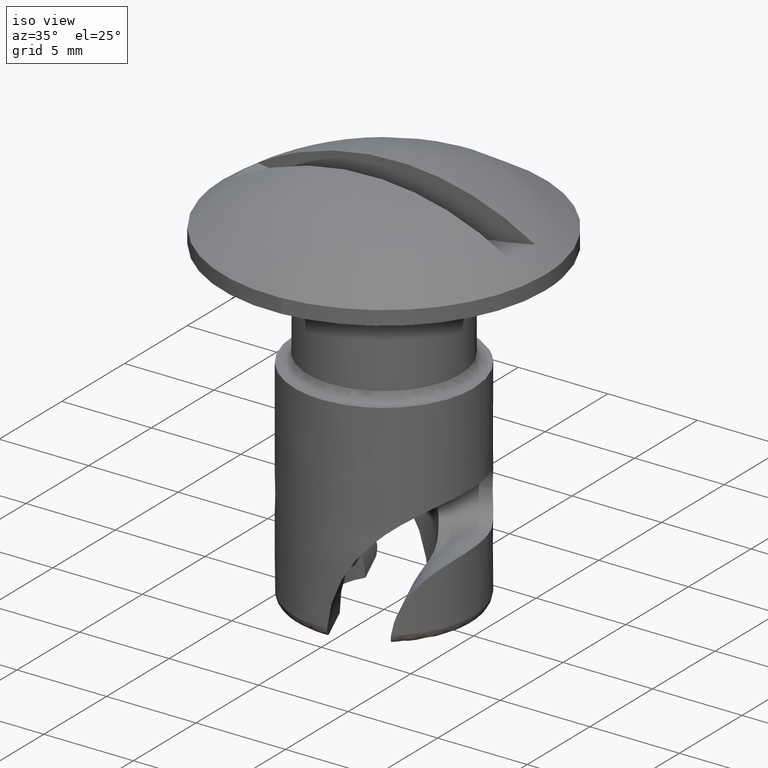
[diagram: clean part render]
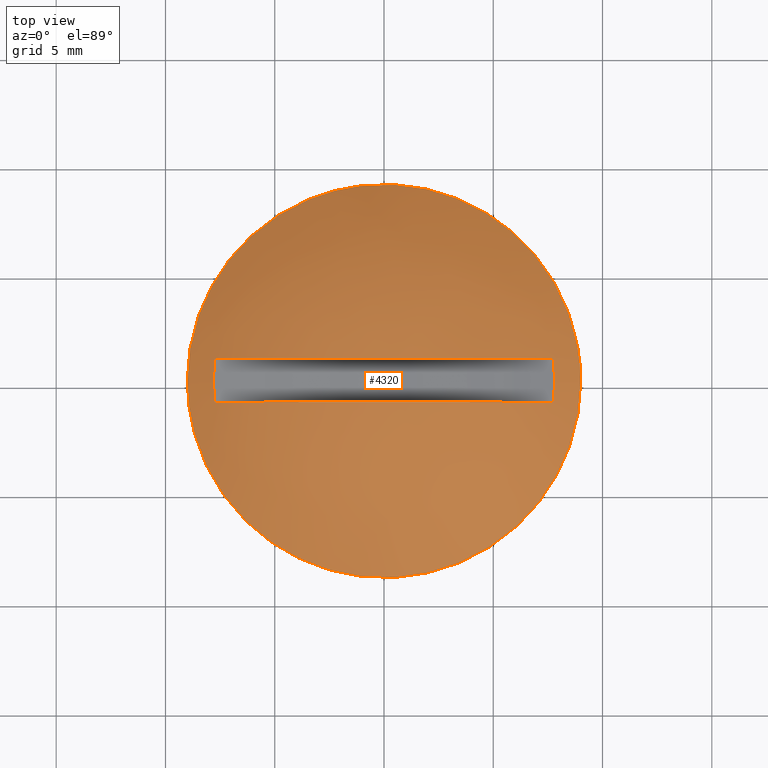
[diagram: tour spotlight — one face highlighted and labeled with its STEP entity id]
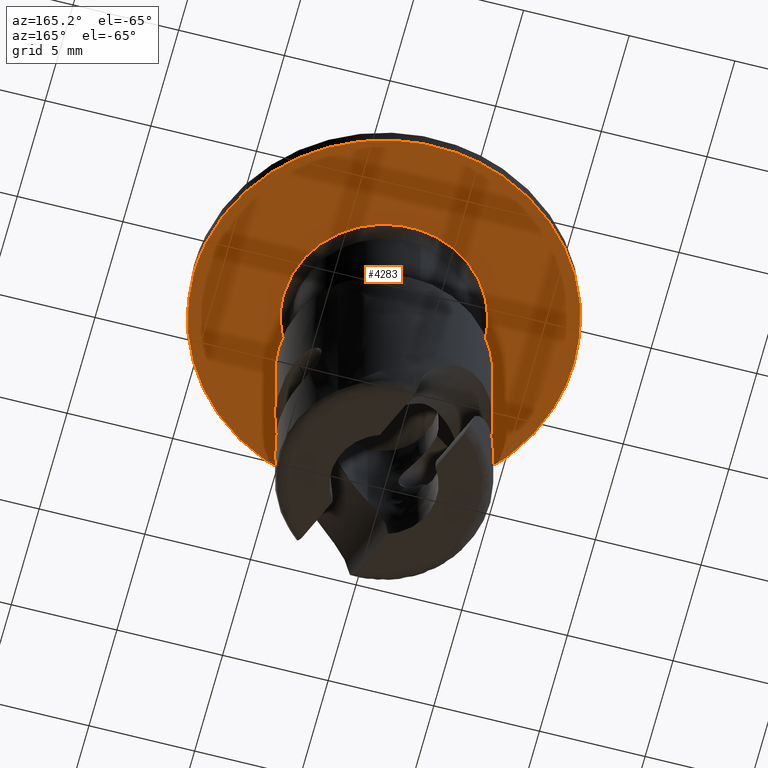
[diagram: tour spotlight — one face highlighted and labeled with its STEP entity id]
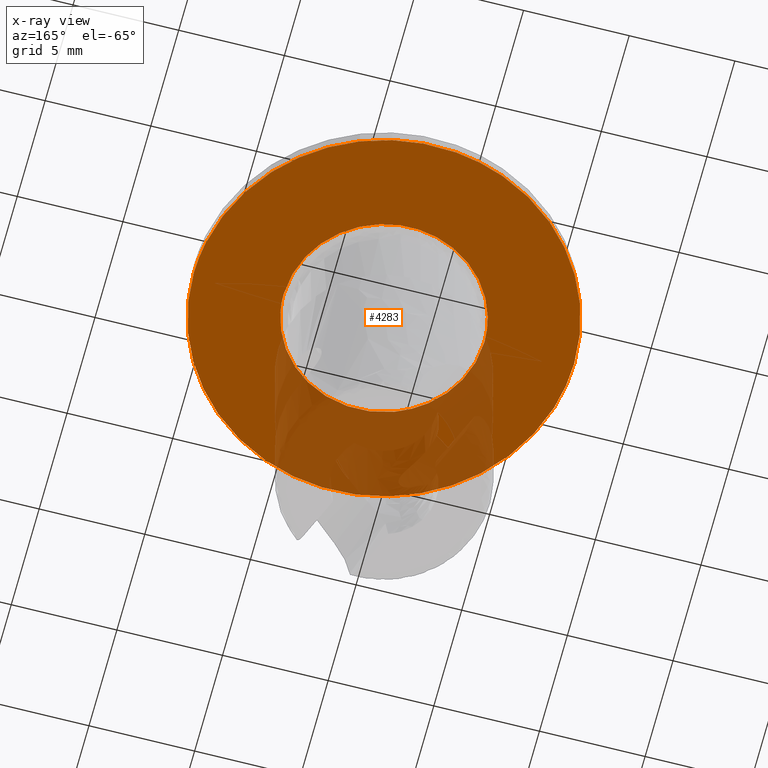
[diagram: x-ray of the same camera — body ghosted, this tour face saturated]
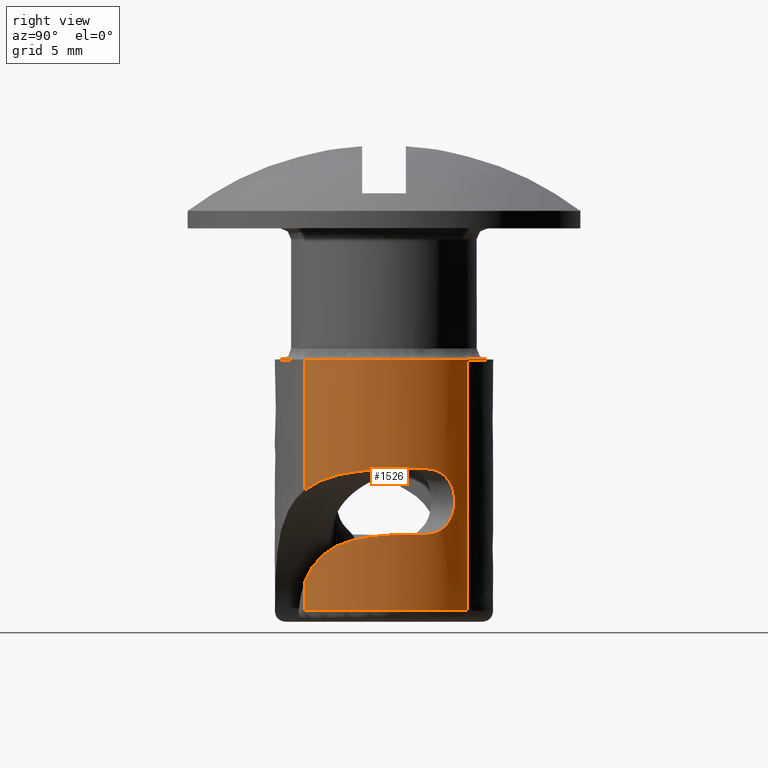
[diagram: tour spotlight — one face highlighted and labeled with its STEP entity id]
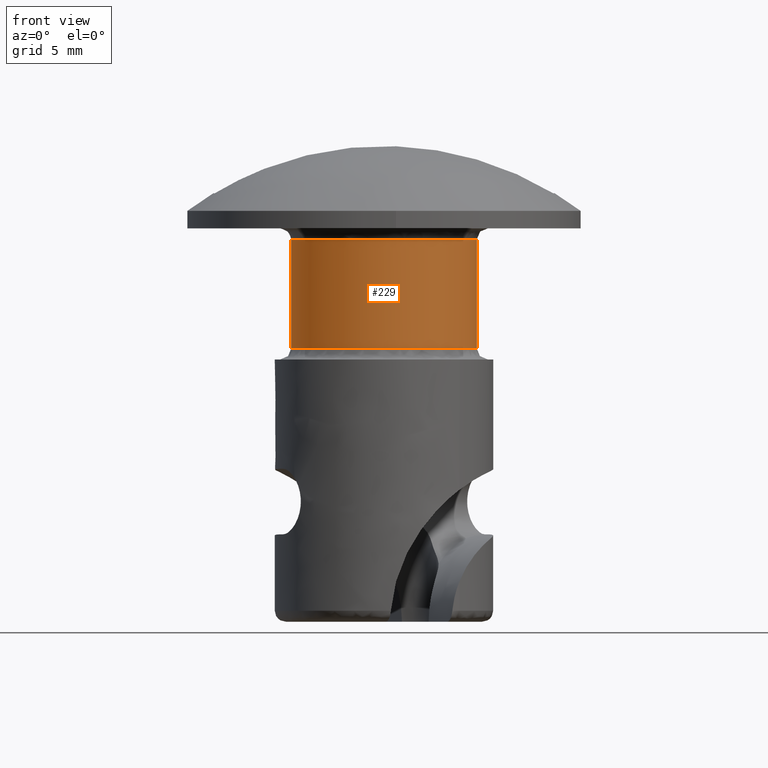
[diagram: tour spotlight — one face highlighted and labeled with its STEP entity id]
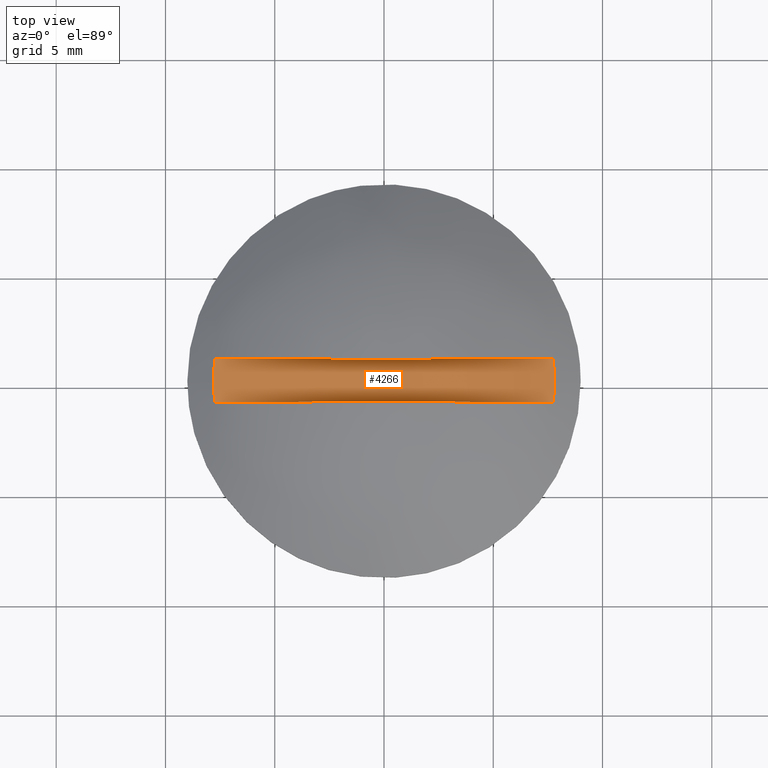
[diagram: tour spotlight — one face highlighted and labeled with its STEP entity id]
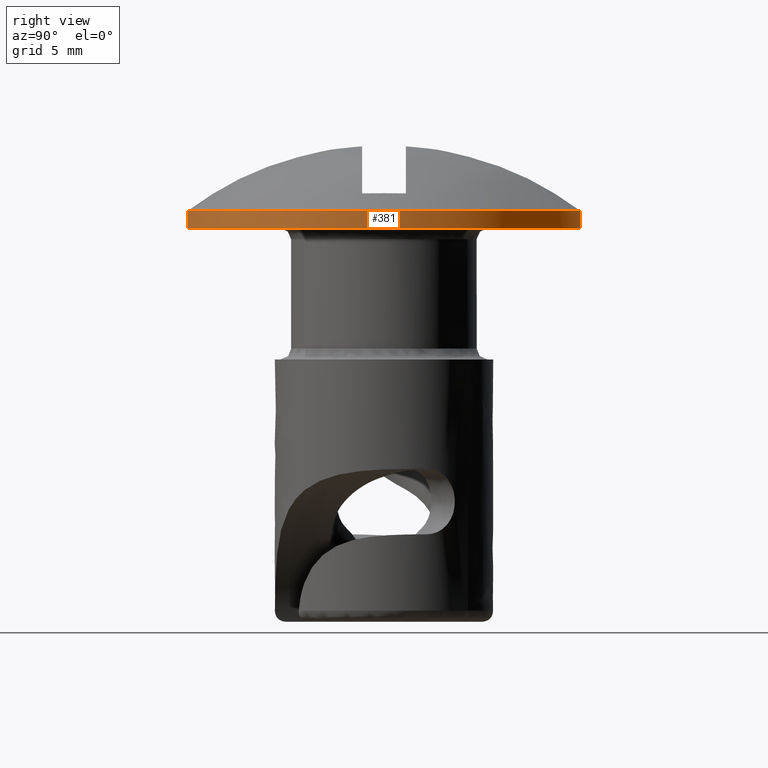
[diagram: tour spotlight — one face highlighted and labeled with its STEP entity id]
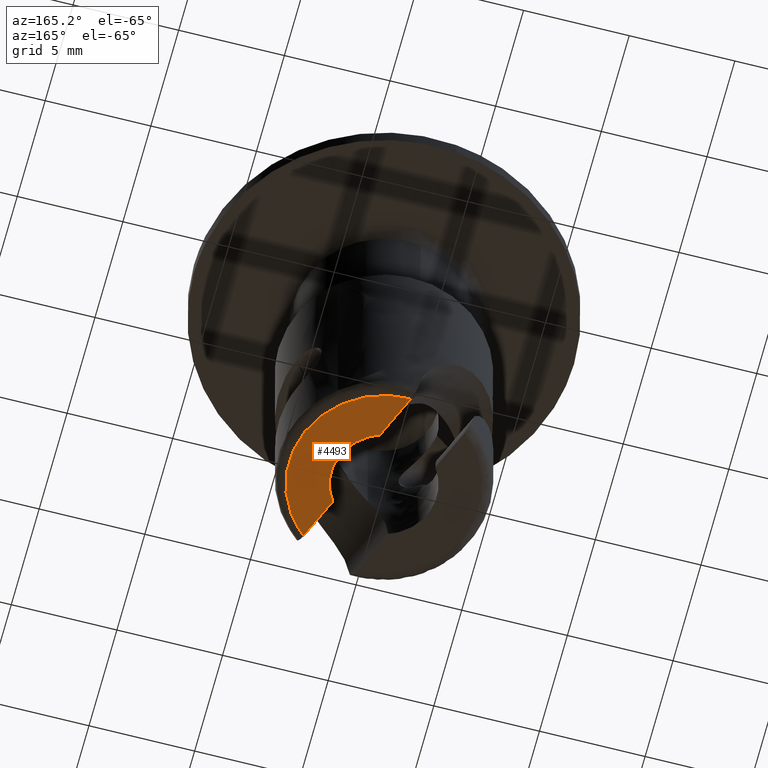
[diagram: tour spotlight — one face highlighted and labeled with its STEP entity id]
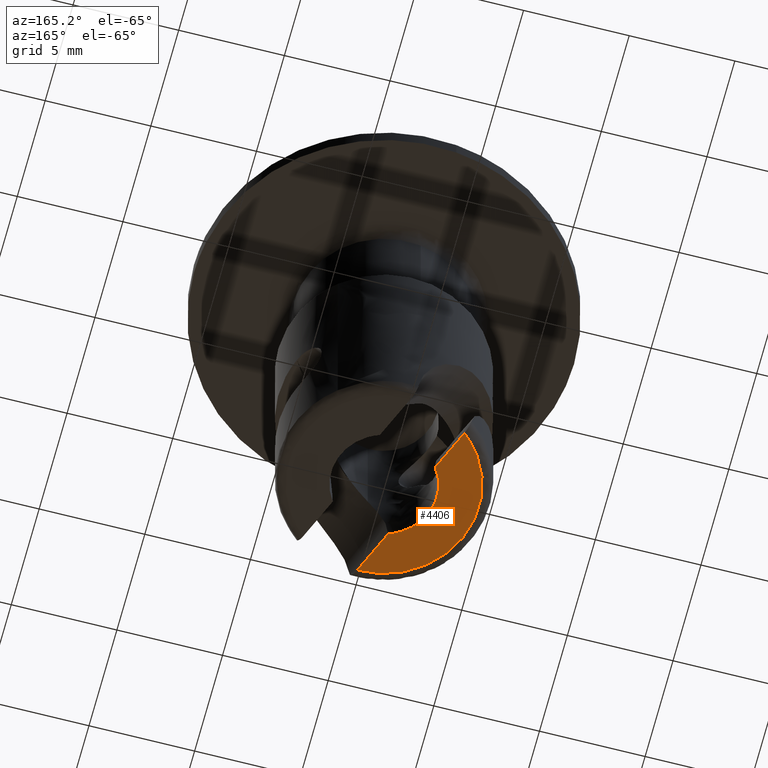
[diagram: tour spotlight — one face highlighted and labeled with its STEP entity id]
A machine part: a face-by-face anatomy tour. The part has 36 B-rep faces; the first image is the clean iso view, then the 8 largest visible faces are spotlighted one at a time (largest first), each with its STEP entity span.

Face 1 — top view, entity #4320. In plain terms, the highlighted face is a freeform B-spline surface patch.
Definition (entity closure, byte-faithful):
#320=CARTESIAN_POINT('',(-1.062306320053986,8.937085950261979,0.800003000000103));
#321=VERTEX_POINT('',#320);
#327=CARTESIAN_POINT('',(9.0,0.0,0.800003000000103));
#328=VERTEX_POINT('',#327);
#329=CARTESIAN_POINT('',(-1.062306320053986,8.937085950261979,0.800003000000103));
#330=CARTESIAN_POINT('',(-0.533016171467157,8.999999999999998,0.800003000000103));
#331=CARTESIAN_POINT('',(0.0,9.0,0.800003000000103));
#332=CARTESIAN_POINT('',(9.0,9.0,0.800003000000103));
#333=CARTESIAN_POINT('',(9.0,0.0,0.800003000000103));
#341=(BOUNDED_CURVE()B_SPLINE_CURVE(2,(#329,#330,#331,#332,#333),.UNSPECIFIED.,.F.,.U.)B_SPLINE_CURVE_WITH_KNOTS((3,2,3),(0.229562507400251,0.250000000000000,0.500000000000000),.UNSPECIFIED.)CURVE()GEOMETRIC_REPRESENTATION_ITEM()RATIONAL_B_SPLINE_CURVE((0.956026820603112,0.976055988031933,1.0,0.707106781186547,1.0))REPRESENTATION_ITEM(''));
#342=EDGE_CURVE('',#321,#328,#341,.T.);
#344=CARTESIAN_POINT('',(0.549429465328879,-8.983213637812114,0.800003000000103));
#345=VERTEX_POINT('',#344);
#346=CARTESIAN_POINT('',(9.0,0.0,0.800003000000103));
#347=CARTESIAN_POINT('',(9.0,-8.466361580435052,0.800003000000103));
#348=CARTESIAN_POINT('',(0.549429465328879,-8.983213637812114,0.800003000000103));
#356=(BOUNDED_CURVE()B_SPLINE_CURVE(2,(#346,#347,#348),.UNSPECIFIED.,.F.,.U.)B_SPLINE_CURVE_WITH_KNOTS((3,3),(0.500000000000000,0.739333104196138),.UNSPECIFIED.)CURVE()GEOMETRIC_REPRESENTATION_ITEM()RATIONAL_B_SPLINE_CURVE((1.0,0.719603826973511,0.976072345908198))REPRESENTATION_ITEM(''));
#357=EDGE_CURVE('',#328,#345,#356,.T.);
#431=CARTESIAN_POINT('',(-9.0,0.0,0.800003000000103));
#432=VERTEX_POINT('',#431);
#433=CARTESIAN_POINT('',(0.549429465328879,-8.983213637812114,0.800003000000103));
#434=CARTESIAN_POINT('',(0.274971164084015,-9.000000000000002,0.800003000000103));
#435=CARTESIAN_POINT('',(0.0,-9.0,0.800003000000103));
#436=CARTESIAN_POINT('',(-9.0,-9.0,0.800003000000103));
#437=CARTESIAN_POINT('',(-9.0,0.0,0.800003000000103));
#445=(BOUNDED_CURVE()B_SPLINE_CURVE(2,(#433,#434,#435,#436,#437),.UNSPECIFIED.,.F.,.U.)B_SPLINE_CURVE_WITH_KNOTS((3,2,3),(0.739333104196138,0.750000000000000,1.0),.UNSPECIFIED.)CURVE()GEOMETRIC_REPRESENTATION_ITEM()RATIONAL_B_SPLINE_CURVE((0.976072345908198,0.987502954213037,1.0,0.707106781186547,1.0))REPRESENTATION_ITEM(''));
#446=EDGE_CURVE('',#345,#432,#445,.T.);
#448=CARTESIAN_POINT('',(-9.0,0.0,0.800003000000103));
#449=CARTESIAN_POINT('',(-9.0,7.993572347529939,0.800003000000103));
#450=CARTESIAN_POINT('',(-1.062306320053986,8.937085950261979,0.800003000000103));
#458=(BOUNDED_CURVE()B_SPLINE_CURVE(2,(#448,#449,#450),.UNSPECIFIED.,.F.,.U.)B_SPLINE_CURVE_WITH_KNOTS((3,3),(0.0,0.229562507400251),.UNSPECIFIED.)CURVE()GEOMETRIC_REPRESENTATION_ITEM()RATIONAL_B_SPLINE_CURVE((1.0,0.731050793154614,0.956026820603112))REPRESENTATION_ITEM(''));
#459=EDGE_CURVE('',#432,#321,#458,.T.);
#4161=CARTESIAN_POINT('',(-7.756297594288951,-0.999999999999909,1.600005047999795));
#4162=VERTEX_POINT('',#4161);
#4163=CARTESIAN_POINT('',(7.756297594288951,-0.999999999999909,1.600005047999795));
#4164=VERTEX_POINT('',#4163);
#4178=CARTESIAN_POINT('',(7.756297594288951,-0.999999999999915,1.600005047999783));
#4179=CARTESIAN_POINT('',(3.469447E-015,-0.999999999999915,6.300019137504304));
#4180=CARTESIAN_POINT('',(-7.756297594288944,-0.999999999999915,1.600005047999785));
#4188=(BOUNDED_CURVE()B_SPLINE_CURVE(2,(#4178,#4179,#4180),.UNSPECIFIED.,.F.,.U.)CURVE()GEOMETRIC_REPRESENTATION_ITEM()QUASI_UNIFORM_CURVE()RATIONAL_B_SPLINE_CURVE((1.0,0.855235576435009,1.0))REPRESENTATION_ITEM(''));
#4189=EDGE_CURVE('',#4164,#4162,#4188,.T.);
#4199=CARTESIAN_POINT('',(7.756297594288951,1.0,1.600005047999795));
#4200=VERTEX_POINT('',#4199);
#4201=CARTESIAN_POINT('',(-7.756297594288951,1.0,1.600005047999795));
#4202=VERTEX_POINT('',#4201);
#4203=CARTESIAN_POINT('',(7.756297594288951,1.0,1.600005047999783));
#4204=CARTESIAN_POINT('',(3.469447E-015,1.0,6.300019137504304));
#4205=CARTESIAN_POINT('',(-7.756297594288944,1.0,1.600005047999785));
#4213=(BOUNDED_CURVE()B_SPLINE_CURVE(2,(#4203,#4204,#4205),.UNSPECIFIED.,.F.,.U.)CURVE()GEOMETRIC_REPRESENTATION_ITEM()QUASI_UNIFORM_CURVE()RATIONAL_B_SPLINE_CURVE((1.0,0.855235576435009,1.0))REPRESENTATION_ITEM(''));
#4214=EDGE_CURVE('',#4200,#4202,#4213,.T.);
#4247=CARTESIAN_POINT('',(-7.756297594288967,-0.999999999999909,1.600005047999784));
#4248=CARTESIAN_POINT('',(-7.788271615787219,-0.666666666666591,1.606671715733117));
#4249=CARTESIAN_POINT('',(-7.819938076451132,4.575333E-014,1.613338383466444));
#4250=CARTESIAN_POINT('',(-7.788271615787212,0.666666666666682,1.606671715733117));
#4251=CARTESIAN_POINT('',(-7.756297594288955,1.0,1.600005047999784));
#4252=B_SPLINE_CURVE_WITH_KNOTS('',3,(#4247,#4248,#4249,#4250,#4251),.UNSPECIFIED.,.F.,.U.,(4,1,4),(0.0,0.500000000000000,1.0),.UNSPECIFIED.);
#4253=EDGE_CURVE('',#4162,#4202,#4252,.T.);
#4256=CARTESIAN_POINT('',(7.756297594288955,1.0,1.600005047999784));
#4257=CARTESIAN_POINT('',(7.788271615787210,0.666666666666682,1.606671715733117));
#4258=CARTESIAN_POINT('',(7.819938076451114,4.586175E-014,1.613338383466455));
#4259=CARTESIAN_POINT('',(7.788271615787211,-0.666666666666591,1.606671715733122));
#4260=CARTESIAN_POINT('',(7.756297594288957,-0.999999999999909,1.600005047999789));
#4261=B_SPLINE_CURVE_WITH_KNOTS('',3,(#4256,#4257,#4258,#4259,#4260),.UNSPECIFIED.,.F.,.U.,(4,1,4),(0.0,0.500000000000000,1.0),.UNSPECIFIED.);
#4262=EDGE_CURVE('',#4200,#4164,#4261,.T.);
#4284=CARTESIAN_POINT('',(-8.668590871397656,-8.668399436222908,-2.556240766830940));
#4285=CARTESIAN_POINT('',(-4.847879113813923,-9.695544108724533,0.245377941945507));
#4286=CARTESIAN_POINT('',(4.847878561237810,-9.695544108724533,0.245377941945507));
#4287=CARTESIAN_POINT('',(8.668590092677633,-8.668399645570821,-2.556240195817853));
#4288=CARTESIAN_POINT('',(-9.695707485270390,-4.847746683743839,0.245239541190159));
#4289=CARTESIAN_POINT('',(-5.499502946345535,-5.499381496582469,3.800011000000088));
#4290=CARTESIAN_POINT('',(5.499502319495342,-5.499381496582469,3.800011000000088));
#4291=CARTESIAN_POINT('',(9.695706642026778,-4.847746814692373,0.245240255535242));
#4292=CARTESIAN_POINT('',(-9.695707485270390,4.847774014610871,0.245239541190172));
#4293=CARTESIAN_POINT('',(-5.499502946345535,5.499412501268606,3.800011000000100));
#4294=CARTESIAN_POINT('',(5.499502319495342,5.499412501268606,3.800011000000100));
#4295=CARTESIAN_POINT('',(9.695706642026778,4.847774145560142,0.245240255535255));
#4296=CARTESIAN_POINT('',(-8.668580516806671,8.668437952935129,-2.556269009176873));
#4297=CARTESIAN_POINT('',(-4.847872636880483,9.695585817090857,0.245342610024615));
#4298=CARTESIAN_POINT('',(4.847872084305109,9.695585817090857,0.245342610024615));
#4299=CARTESIAN_POINT('',(8.668579738087335,8.668438162283731,-2.556268438165152));
#4307=(BOUNDED_SURFACE()B_SPLINE_SURFACE(2,2,((#4284,#4288,#4292,#4296),(#4285,#4289,#4293,#4297),(#4286,#4290,#4294,#4298),(#4287,#4291,#4295,#4299)),.UNSPECIFIED.,.F.,.F.,.U.)B_SPLINE_SURFACE_WITH_KNOTS((3,1,3),(3,1,3),(1.152420298242569,11.305347194732120,21.458272933959961),(1.152644513154030,11.305347194732120,21.458107115721699),.UNSPECIFIED.)GEOMETRIC_REPRESENTATION_ITEM()RATIONAL_B_SPLINE_SURFACE(((1.268834353341407,1.134420145141614,1.134420145141614,1.268835868959879),(1.134414208199793,1.0,1.0,1.134415723818265),(1.134414208199793,1.0,1.0,1.134415723818265),(1.268834322698170,1.134420114498377,1.134420114498377,1.268835838316641)))REPRESENTATION_ITEM('')SURFACE());
#4308=ORIENTED_EDGE('',*,*,#446,.F.);
#4309=ORIENTED_EDGE('',*,*,#357,.F.);
#4310=ORIENTED_EDGE('',*,*,#342,.F.);
#4311=ORIENTED_EDGE('',*,*,#459,.F.);
#4312=EDGE_LOOP('',(#4308,#4309,#4310,#4311));
#4313=FACE_OUTER_BOUND('',#4312,.T.);
#4314=ORIENTED_EDGE('',*,*,#4214,.F.);
#4315=ORIENTED_EDGE('',*,*,#4262,.T.);
#4316=ORIENTED_EDGE('',*,*,#4189,.T.);
#4317=ORIENTED_EDGE('',*,*,#4253,.T.);
#4318=EDGE_LOOP('',(#4314,#4315,#4316,#4317));
#4319=FACE_BOUND('',#4318,.T.);
#4320=ADVANCED_FACE('',(#4313,#4319),#4307,.T.);

Face 2 — auxiliary view, entity #4283. An x-ray twin of the same camera follows (body ghosted, this face saturated) — the face is partly hidden behind the body. In plain terms, the highlighted face is a freeform B-spline surface patch.
Definition (entity closure, byte-faithful):
#301=CARTESIAN_POINT('',(-1.062306297689585,8.937085952920317,2.981222E-014));
#302=VERTEX_POINT('',#301);
#303=CARTESIAN_POINT('',(9.0,0.0,0.0));
#304=VERTEX_POINT('',#303);
#305=CARTESIAN_POINT('',(-1.062306297689585,8.937085952920317,2.981222E-014));
#306=CARTESIAN_POINT('',(-0.533016160166741,9.0,0.0));
#307=CARTESIAN_POINT('',(0.0,9.0,0.0));
#308=CARTESIAN_POINT('',(9.0,9.0,0.0));
#309=CARTESIAN_POINT('',(9.0,0.0,0.0));
#317=(BOUNDED_CURVE()B_SPLINE_CURVE(2,(#305,#306,#307,#308,#309),.UNSPECIFIED.,.F.,.U.)B_SPLINE_CURVE_WITH_KNOTS((3,2,3),(0.229562507823169,0.250000000000000,0.500000000000000),.UNSPECIFIED.)CURVE()GEOMETRIC_REPRESENTATION_ITEM()RATIONAL_B_SPLINE_CURVE((0.956026821432049,0.976055988527413,1.0,0.707106781186547,1.0))REPRESENTATION_ITEM(''));
#318=EDGE_CURVE('',#302,#304,#317,.T.);
#359=CARTESIAN_POINT('',(0.549429373009284,-8.983213643458470,2.715536E-014));
#360=VERTEX_POINT('',#359);
#366=CARTESIAN_POINT('',(9.0,0.0,0.0));
#367=CARTESIAN_POINT('',(9.0,-8.466361667605590,0.0));
#368=CARTESIAN_POINT('',(0.549429373009284,-8.983213643458470,2.715536E-014));
#376=(BOUNDED_CURVE()B_SPLINE_CURVE(2,(#366,#367,#368),.UNSPECIFIED.,.F.,.U.)B_SPLINE_CURVE_WITH_KNOTS((3,3),(0.500000000000000,0.739333105969385),.UNSPECIFIED.)CURVE()GEOMETRIC_REPRESENTATION_ITEM()RATIONAL_B_SPLINE_CURVE((1.0,0.719603824896023,0.976072349708608))REPRESENTATION_ITEM(''));
#377=EDGE_CURVE('',#304,#360,#376,.T.);
#400=CARTESIAN_POINT('',(-9.0,0.0,0.0));
#401=VERTEX_POINT('',#400);
#402=CARTESIAN_POINT('',(-9.0,0.0,0.0));
#403=CARTESIAN_POINT('',(-9.000000000000002,7.993572367674081,0.0));
#404=CARTESIAN_POINT('',(-1.062306297689585,8.937085952920317,2.981222E-014));
#412=(BOUNDED_CURVE()B_SPLINE_CURVE(2,(#402,#403,#404),.UNSPECIFIED.,.F.,.U.)B_SPLINE_CURVE_WITH_KNOTS((3,3),(0.0,0.229562507823169),.UNSPECIFIED.)CURVE()GEOMETRIC_REPRESENTATION_ITEM()RATIONAL_B_SPLINE_CURVE((1.0,0.731050792659135,0.956026821432049))REPRESENTATION_ITEM(''));
#413=EDGE_CURVE('',#401,#302,#412,.T.);
#415=CARTESIAN_POINT('',(0.549429373009284,-8.983213643458470,2.715536E-014));
#416=CARTESIAN_POINT('',(0.274971117794797,-9.000000000000002,0.0));
#417=CARTESIAN_POINT('',(0.0,-9.0,0.0));
#418=CARTESIAN_POINT('',(-9.0,-9.0,0.0));
#419=CARTESIAN_POINT('',(-9.0,0.0,0.0));
#427=(BOUNDED_CURVE()B_SPLINE_CURVE(2,(#415,#416,#417,#418,#419),.UNSPECIFIED.,.F.,.U.)B_SPLINE_CURVE_WITH_KNOTS((3,2,3),(0.739333105969385,0.750000000000000,1.0),.UNSPECIFIED.)CURVE()GEOMETRIC_REPRESENTATION_ITEM()RATIONAL_B_SPLINE_CURVE((0.976072349708608,0.987502956290524,1.0,0.707106781186547,1.0))REPRESENTATION_ITEM(''));
#428=EDGE_CURVE('',#360,#401,#427,.T.);
#1740=CARTESIAN_POINT('',(-4.749999999905166,1.109309E-016,1.369246E-014));
#1741=VERTEX_POINT('',#1740);
#1755=CARTESIAN_POINT('',(4.750000000000000,0.0,0.0));
#1756=VERTEX_POINT('',#1755);
#1757=CARTESIAN_POINT('',(4.750000000000000,0.0,0.0));
#1758=CARTESIAN_POINT('',(4.750000000000000,4.750000000000000,0.0));
#1759=CARTESIAN_POINT('',(0.0,4.750000000000000,0.0));
#1760=CARTESIAN_POINT('',(-4.750000000000000,4.750000000000000,0.0));
#1761=CARTESIAN_POINT('',(-4.749999999905166,1.109309E-016,1.369246E-014));
#1769=(BOUNDED_CURVE()B_SPLINE_CURVE(2,(#1757,#1758,#1759,#1760,#1761),.UNSPECIFIED.,.F.,.U.)B_SPLINE_CURVE_WITH_KNOTS((3,2,3),(0.0,0.250000000000000,0.500000000000000),.UNSPECIFIED.)CURVE()GEOMETRIC_REPRESENTATION_ITEM()RATIONAL_B_SPLINE_CURVE((1.0,0.707106781186548,1.0,0.707106781186548,1.0))REPRESENTATION_ITEM(''));
#1770=EDGE_CURVE('',#1756,#1741,#1769,.T.);
#1772=CARTESIAN_POINT('',(-1.678184341631832,-4.443669352607106,2.738718E-014));
#1773=VERTEX_POINT('',#1772);
#1774=CARTESIAN_POINT('',(-1.678184341631832,-4.443669352607106,2.738718E-014));
#1775=CARTESIAN_POINT('',(-0.867050501498491,-4.750000000000000,0.0));
#1776=CARTESIAN_POINT('',(0.0,-4.750000000000000,0.0));
#1777=CARTESIAN_POINT('',(4.750000000000000,-4.750000000000000,0.0));
#1778=CARTESIAN_POINT('',(4.750000000000000,0.0,0.0));
#1786=(BOUNDED_CURVE()B_SPLINE_CURVE(2,(#1774,#1775,#1776,#1777,#1778),.UNSPECIFIED.,.F.,.U.)B_SPLINE_CURVE_WITH_KNOTS((3,2,3),(0.689999999999725,0.750000000000000,1.0),.UNSPECIFIED.)CURVE()GEOMETRIC_REPRESENTATION_ITEM()RATIONAL_B_SPLINE_CURVE((0.893152553776517,0.929705627484449,1.0,0.707106781186548,1.0))REPRESENTATION_ITEM(''));
#1787=EDGE_CURVE('',#1773,#1756,#1786,.T.);
#1824=CARTESIAN_POINT('',(-4.749999999905166,1.109309E-016,1.369246E-014));
#1825=CARTESIAN_POINT('',(-4.750000000000000,-3.283575626204874,0.0));
#1826=CARTESIAN_POINT('',(-1.678184341631831,-4.443669352607106,2.738718E-014));
#1834=(BOUNDED_CURVE()B_SPLINE_CURVE(2,(#1824,#1825,#1826),.UNSPECIFIED.,.F.,.U.)B_SPLINE_CURVE_WITH_KNOTS((3,3),(0.500000000000000,0.689999999999726),.UNSPECIFIED.)CURVE()GEOMETRIC_REPRESENTATION_ITEM()RATIONAL_B_SPLINE_CURVE((1.0,0.777401153702097,0.893152553776519))REPRESENTATION_ITEM(''));
#1835=EDGE_CURVE('',#1741,#1773,#1834,.T.);
#4267=CARTESIAN_POINT('',(-9.899099965112507,-9.898881420025521,0.0));
#4268=CARTESIAN_POINT('',(9.899100447910129,-9.898881420025521,0.0));
#4269=CARTESIAN_POINT('',(-9.899099965112507,9.898936298021969,0.0));
#4270=CARTESIAN_POINT('',(9.899100447910129,9.898936298021969,0.0));
#4271=B_SPLINE_SURFACE_WITH_KNOTS('',1,1,((#4267,#4269),(#4268,#4270)),.UNSPECIFIED.,.F.,.F.,.U.,(2,2),(2,2),(0.0,19.798200413022631),(0.0,19.797817718047490),.UNSPECIFIED.);
#4272=ORIENTED_EDGE('',*,*,#413,.T.);
#4273=ORIENTED_EDGE('',*,*,#318,.T.);
#4274=ORIENTED_EDGE('',*,*,#377,.T.);
#4275=ORIENTED_EDGE('',*,*,#428,.T.);
#4276=EDGE_LOOP('',(#4272,#4273,#4274,#4275));
#4277=FACE_OUTER_BOUND('',#4276,.T.);
#4278=ORIENTED_EDGE('',*,*,#1770,.T.);
#4279=ORIENTED_EDGE('',*,*,#1835,.T.);
#4280=ORIENTED_EDGE('',*,*,#1787,.T.);
#4281=EDGE_LOOP('',(#4278,#4279,#4280));
#4282=FACE_BOUND('',#4281,.T.);
#4283=ADVANCED_FACE('',(#4277,#4282),#4271,.F.);

Face 3 — right view, entity #1526. In plain terms, the highlighted face is a freeform B-spline surface patch.
Definition (entity closure, byte-faithful):
#990=CARTESIAN_POINT('',(3.441774361420165,-3.626873180897841,-16.183041238356260));
#991=VERTEX_POINT('',#990);
#1005=CARTESIAN_POINT('',(3.441767838297122,-3.626876637992430,-17.500000000000000));
#1006=VERTEX_POINT('',#1005);
#1020=CARTESIAN_POINT('',(3.441767838297122,-3.626876637992430,-17.500000000000000));
#1021=CARTESIAN_POINT('',(3.441774361420165,-3.626873180897841,-16.183041238356260));
#1022=QUASI_UNIFORM_CURVE('',1,(#1020,#1021),.UNSPECIFIED.,.F.,.U.);
#1023=EDGE_CURVE('',#1006,#991,#1022,.T.);
#1050=CARTESIAN_POINT('',(3.205213401254789,3.837526163091908,-17.500000000000011));
#1051=VERTEX_POINT('',#1050);
#1249=CARTESIAN_POINT('',(3.441772388405640,-3.626879167857965,-11.971468600115511));
#1250=VERTEX_POINT('',#1249);
#1284=CARTESIAN_POINT('',(3.441772839491789,-3.626871892049210,-5.999999999999999));
#1285=VERTEX_POINT('',#1284);
#1286=CARTESIAN_POINT('',(3.441772388405640,-3.626879167857965,-11.971468600115511));
#1287=CARTESIAN_POINT('',(3.441772839491789,-3.626871892049210,-5.999999999999999));
#1288=QUASI_UNIFORM_CURVE('',1,(#1286,#1287),.UNSPECIFIED.,.F.,.U.);
#1289=EDGE_CURVE('',#1250,#1285,#1288,.T.);
#1308=CARTESIAN_POINT('',(3.205211512362926,3.837527740748580,-6.000000000000001));
#1309=VERTEX_POINT('',#1308);
#1325=CARTESIAN_POINT('',(3.205213401254789,3.837526163091908,-17.500000000000011));
#1326=CARTESIAN_POINT('',(3.205211512362926,3.837527740748580,-6.000000000000001));
#1327=QUASI_UNIFORM_CURVE('',1,(#1325,#1326),.UNSPECIFIED.,.F.,.U.);
#1328=EDGE_CURVE('',#1051,#1309,#1327,.T.);
#1333=CARTESIAN_POINT('',(3.414157654205854,-3.653077724388828,-17.787500000000005));
#1334=CARTESIAN_POINT('',(3.427943458396952,-3.639995484687804,-17.787500000000001));
#1335=CARTESIAN_POINT('',(7.068644733530205,-0.185098976592668,-17.787500000000009));
#1336=CARTESIAN_POINT('',(3.626871855061437,3.441772878468769,-17.787500000000009));
#1337=CARTESIAN_POINT('',(3.427504307509547,3.651862437704958,-17.787500000000001));
#1338=CARTESIAN_POINT('',(3.189877293740515,3.850335318905427,-17.787499999999998));
#1339=CARTESIAN_POINT('',(3.174499511389910,3.863179282734241,-17.787500000000009));
#1340=CARTESIAN_POINT('',(3.414157654205854,-3.653077724388828,-5.705312499999998));
#1341=CARTESIAN_POINT('',(3.427943458396952,-3.639995484687804,-5.705312499999995));
#1342=CARTESIAN_POINT('',(7.068644733530205,-0.185098976592668,-5.705312499999998));
#1343=CARTESIAN_POINT('',(3.626871855061437,3.441772878468769,-5.705312499999998));
#1344=CARTESIAN_POINT('',(3.427504307509547,3.651862437704958,-5.705312499999997));
#1345=CARTESIAN_POINT('',(3.189877293740515,3.850335318905427,-5.705312499999998));
#1346=CARTESIAN_POINT('',(3.174499511389910,3.863179282734241,-5.705312499999997));
#1354=(BOUNDED_SURFACE()B_SPLINE_SURFACE(2,1,((#1333,#1340),(#1334,#1341),(#1335,#1342),(#1336,#1343),(#1337,#1344),(#1338,#1345),(#1339,#1346)),.UNSPECIFIED.,.F.,.F.,.U.)B_SPLINE_SURFACE_WITH_KNOTS((3,1,2,1,3),(2,2),(0.0,0.044743251239566,8.329014498701461,8.991756198498415,9.036492566440177),(0.0,12.082187500000011),.UNSPECIFIED.)GEOMETRIC_REPRESENTATION_ITEM()RATIONAL_B_SPLINE_SURFACE(((1.003163825636383,1.003163825636383),(1.001581912818192,1.001581912818192),(0.707106781186548,0.707106781186548),(1.0,1.0),(0.976568542494924,0.976568542494924),(0.955557515846894,0.955557515846894),(0.954228913503129,0.954228913503129)))REPRESENTATION_ITEM('')SURFACE());
#1355=CARTESIAN_POINT('',(3.441767838297122,-3.626876637992430,-17.500000000000000));
#1356=CARTESIAN_POINT('',(5.871268276482607,-1.321373223936449,-17.499999999999996));
#1357=CARTESIAN_POINT('',(4.663729042102849,1.802673409646474,-17.500000000000000));
#1358=CARTESIAN_POINT('',(4.197570472817775,3.008680690924489,-17.500000000000000));
#1359=CARTESIAN_POINT('',(3.205213401254788,3.837526163091908,-17.500000000000004));
#1367=(BOUNDED_CURVE()B_SPLINE_CURVE(2,(#1355,#1356,#1357,#1358,#1359),.UNSPECIFIED.,.F.,.U.)B_SPLINE_CURVE_WITH_KNOTS((3,2,3),(0.035159372546306,0.500000000000000,0.701706668994408),.UNSPECIFIED.)CURVE()GEOMETRIC_REPRESENTATION_ITEM()RATIONAL_B_SPLINE_CURVE((0.974721159961203,0.820255324483505,1.0,0.922004021106084,0.906937278602768))REPRESENTATION_ITEM(''));
#1368=EDGE_CURVE('',#1006,#1051,#1367,.T.);
#1369=ORIENTED_EDGE('',*,*,#1368,.T.);
#1370=ORIENTED_EDGE('',*,*,#1328,.T.);
#1371=CARTESIAN_POINT('',(5.0,0.0,-6.0));
#1372=VERTEX_POINT('',#1371);
#1373=CARTESIAN_POINT('',(5.0,0.0,-6.0));
#1374=CARTESIAN_POINT('',(5.000000000000002,2.338469724373694,-5.999999999999999));
#1375=CARTESIAN_POINT('',(3.205211512362927,3.837527740748580,-6.000000000000001));
#1383=(BOUNDED_CURVE()B_SPLINE_CURVE(2,(#1373,#1374,#1375),.UNSPECIFIED.,.F.,.U.)B_SPLINE_CURVE_WITH_KNOTS((3,3),(0.0,0.138519973803395),.UNSPECIFIED.)CURVE()GEOMETRIC_REPRESENTATION_ITEM()RATIONAL_B_SPLINE_CURVE((1.0,0.837713756011074,0.855266602150127))REPRESENTATION_ITEM(''));
#1384=EDGE_CURVE('',#1372,#1309,#1383,.T.);
#1385=ORIENTED_EDGE('',*,*,#1384,.F.);
#1386=CARTESIAN_POINT('',(3.441772839491789,-3.626871892049211,-5.999999999999999));
#1387=CARTESIAN_POINT('',(5.0,-2.148169593486219,-6.000000000000001));
#1388=CARTESIAN_POINT('',(5.0,0.0,-6.0));
#1396=(BOUNDED_CURVE()B_SPLINE_CURVE(2,(#1386,#1387,#1388),.UNSPECIFIED.,.F.,.U.)B_SPLINE_CURVE_WITH_KNOTS((3,3),(0.871049523415410,1.0),.UNSPECIFIED.)CURVE()GEOMETRIC_REPRESENTATION_ITEM()RATIONAL_B_SPLINE_CURVE((0.853699661609638,0.848925119382442,1.0))REPRESENTATION_ITEM(''));
#1397=EDGE_CURVE('',#1285,#1372,#1396,.T.);
#1398=ORIENTED_EDGE('',*,*,#1397,.F.);
#1399=ORIENTED_EDGE('',*,*,#1289,.F.);
#1400=CARTESIAN_POINT('',(4.602524578819660,1.953654908462775,-11.0));
#1401=VERTEX_POINT('',#1400);
#1402=CARTESIAN_POINT('',(3.441772388405640,-3.626879167857965,-11.971468600115511));
#1403=CARTESIAN_POINT('',(3.548379290769163,-3.525720053493805,-11.889846318762080));
#1404=CARTESIAN_POINT('',(3.652592007997236,-3.417887812083153,-11.814368646535421));
#1405=CARTESIAN_POINT('',(3.834675302809544,-3.210957414361682,-11.688848266577450));
#1406=CARTESIAN_POINT('',(3.913651459617371,-3.114392132599221,-11.636739530120360));
#1407=CARTESIAN_POINT('',(4.066784031874964,-2.911593689698409,-11.539596723258800));
#1408=CARTESIAN_POINT('',(4.141246852794475,-2.804805105468261,-11.494399087561410));
#1409=CARTESIAN_POINT('',(4.351417024670488,-2.476428974229273,-11.371493494087339));
#1410=CARTESIAN_POINT('',(4.475381036197223,-2.245292893238941,-11.305440532652931));
#1411=CARTESIAN_POINT('',(4.634749717476911,-1.880605603169894,-11.224529621177650));
#1412=CARTESIAN_POINT('',(4.683432074679257,-1.756036664794147,-11.200601978509541));
#1413=CARTESIAN_POINT('',(4.749367729174497,-1.564623638782541,-11.168669482225370));
#1414=CARTESIAN_POINT('',(4.770196351585413,-1.499932920731350,-11.158670236486540));
#1415=CARTESIAN_POINT('',(4.809062719418975,-1.370215027258469,-11.140059688893651));
#1416=CARTESIAN_POINT('',(4.827145104689722,-1.305074429956659,-11.131426498640820));
#1417=CARTESIAN_POINT('',(4.910850496597194,-0.978002750190547,-11.091266604662540));
#1418=CARTESIAN_POINT('',(4.956468675063249,-0.711993500965210,-11.068656572854080));
#1419=CARTESIAN_POINT('',(4.986424401718830,-0.374385302542007,-11.047762025197651));
#1420=CARTESIAN_POINT('',(4.991054925525993,-0.306607105400296,-11.043957468186640));
#1421=CARTESIAN_POINT('',(4.997554832299331,-0.170539251296157,-11.037005701898901));
#1422=CARTESIAN_POINT('',(4.999424491643975,-0.102133219152848,-11.033853767759441));
#1423=CARTESIAN_POINT('',(5.000809247173389,0.103035256701305,-11.025291505781031));
#1424=CARTESIAN_POINT('',(4.996123775507819,0.239010531266467,-11.020793447954629));
#1425=CARTESIAN_POINT('',(4.965686761433352,0.644569415835293,-11.009847397005361));
#1426=CARTESIAN_POINT('',(4.923659035060767,0.911799969775102,-11.005870758018400));
#1427=CARTESIAN_POINT('',(4.827833167118976,1.307852232436450,-11.002173938973151));
#1428=CARTESIAN_POINT('',(4.790312114640976,1.439329984281694,-11.001338796190600));
#1429=CARTESIAN_POINT('',(4.704332169186993,1.699417314437545,-11.000251810538540));
#1430=CARTESIAN_POINT('',(4.656069048272672,1.827512110287284,-11.000000156412080));
#1431=CARTESIAN_POINT('',(4.602524578819660,1.953654908462775,-11.0));
#1432=B_SPLINE_CURVE_WITH_KNOTS('',3,(#1402,#1403,#1404,#1405,#1406,#1407,#1408,#1409,#1410,#1411,#1412,#1413,#1414,#1415,#1416,#1417,#1418,#1419,#1420,#1421,#1422,#1423,#1424,#1425,#1426,#1427,#1428,#1429,#1430,#1431),.UNSPECIFIED.,.F.,.U.,(4,2,2,2,2,2,2,2,2,2,2,2,2,2,4),(0.523472651077458,0.562500000000002,0.593750000000002,0.625000000000002,0.687500000000001,0.718750000000001,0.734375000000001,0.750000000000001,0.812500000000001,0.828125000000001,0.843750000000001,0.875000000000000,0.937500000000000,0.968750000000000,1.0),.UNSPECIFIED.);
#1433=EDGE_CURVE('',#1250,#1401,#1432,.T.);
#1434=ORIENTED_EDGE('',*,*,#1433,.T.);
#1435=CARTESIAN_POINT('',(4.602524578820230,1.953654908464365,-14.000000000003761));
#1436=VERTEX_POINT('',#1435);
#1437=CARTESIAN_POINT('',(4.602524578819660,1.953654908462775,-11.0));
#1438=CARTESIAN_POINT('',(4.563888335937327,2.044676233022971,-10.999999999998710));
#1439=CARTESIAN_POINT('',(4.522988108416791,2.133531719943489,-11.009682829590790));
#1440=CARTESIAN_POINT('',(4.458480223899394,2.263691421178953,-11.038600209390721));
#1441=CARTESIAN_POINT('',(4.436325682373276,2.306788186096278,-11.050742209554331));
#1442=CARTESIAN_POINT('',(4.391689454748660,2.390673760396322,-11.079593394369100));
#1443=CARTESIAN_POINT('',(4.369260238922511,2.431385331617874,-11.096239295939929));
#1444=CARTESIAN_POINT('',(4.301813212885345,2.550035636297681,-11.152631568160199));
#1445=CARTESIAN_POINT('',(4.256622245118565,2.624516412491075,-11.198766978454310));
#1446=CARTESIAN_POINT('',(4.166965229559697,2.764655514293549,-11.308624989452870));
#1447=CARTESIAN_POINT('',(4.123928188989802,2.828103263411385,-11.370610466680210));
#1448=CARTESIAN_POINT('',(4.063011887700119,2.914304778934971,-11.473769728811170));
#1449=CARTESIAN_POINT('',(4.043314921861693,2.941534866259904,-11.509869394523520));
#1450=CARTESIAN_POINT('',(4.005353683660792,2.993019344333915,-11.585599964781441));
#1451=CARTESIAN_POINT('',(3.987068279313911,3.017296079900916,-11.625325430129980));
#1452=CARTESIAN_POINT('',(3.935837247661400,3.084208415575646,-11.747326254159301));
#1453=CARTESIAN_POINT('',(3.906065506707494,3.121568112939354,-11.833173105041331));
#1454=CARTESIAN_POINT('',(3.869015228129439,3.167191969411543,-11.968863480211461));
#1455=CARTESIAN_POINT('',(3.857908938142202,3.180686438203840,-12.015408293585191));
#1456=CARTESIAN_POINT('',(3.838645093046538,3.203908775667784,-12.110277731646409));
#1457=CARTESIAN_POINT('',(3.830575341310174,3.213532960955393,-12.158121174139771));
#1458=CARTESIAN_POINT('',(3.811099976680846,3.236653072873954,-12.302856774833430));
#1459=CARTESIAN_POINT('',(3.804400519366004,3.244462465592798,-12.400979740911909));
#1460=CARTESIAN_POINT('',(3.804464001416536,3.244388026164331,-12.600424053246620));
#1461=CARTESIAN_POINT('',(3.811220267633781,3.236511522801229,-12.698357456029550));
#1462=CARTESIAN_POINT('',(3.830709542850854,3.213373008183660,-12.842713633293240));
#1463=CARTESIAN_POINT('',(3.838772165615324,3.203756348083365,-12.890405392791280));
#1464=CARTESIAN_POINT('',(3.857987983951830,3.180590384358021,-12.984923042933181));
#1465=CARTESIAN_POINT('',(3.869159482681556,3.167016169637896,-13.031723439997830));
#1466=CARTESIAN_POINT('',(3.906337838463249,3.121229049025454,-13.167705702132769));
#1467=CARTESIAN_POINT('',(3.936183187646426,3.083767803543987,-13.253605951446470));
#1468=CARTESIAN_POINT('',(3.987451172444841,3.016790286975461,-13.375531304672730));
#1469=CARTESIAN_POINT('',(4.005736760199250,2.992507007240881,-13.415208834497470));
#1470=CARTESIAN_POINT('',(4.043732834366359,2.940960717973769,-13.490918784804149));
#1471=CARTESIAN_POINT('',(4.063440839945876,2.913706825363495,-13.526995332467591));
#1472=CARTESIAN_POINT('',(4.124368310533359,2.827462066006834,-13.630056315970871));
#1473=CARTESIAN_POINT('',(4.167374391739295,2.764036537589166,-13.691926270961060));
#1474=CARTESIAN_POINT('',(4.256934651737492,2.624007369061485,-13.801565505830970));
#1475=CARTESIAN_POINT('',(4.302196790825364,2.549380996104972,-13.847723002082891));
#1476=CARTESIAN_POINT('',(4.369475931489903,2.430995733583822,-13.903923958845430));
#1477=CARTESIAN_POINT('',(4.391828437819328,2.390414362847930,-13.920499122912011));
#1478=CARTESIAN_POINT('',(4.436270531590656,2.306890032898966,-13.949219454146551));
#1479=CARTESIAN_POINT('',(4.458477163732525,2.263700551619403,-13.961402498947940));
#1480=CARTESIAN_POINT('',(4.523174490997310,2.133149725569402,-13.990392544015160));
#1481=CARTESIAN_POINT('',(4.564039231841210,2.044320744390519,-13.999999999997730));
#1482=CARTESIAN_POINT('',(4.602524578820230,1.953654908464365,-14.000000000003761));
#1483=B_SPLINE_CURVE_WITH_KNOTS('',3,(#1437,#1438,#1439,#1440,#1441,#1442,#1443,#1444,#1445,#1446,#1447,#1448,#1449,#1450,#1451,#1452,#1453,#1454,#1455,#1456,#1457,#1458,#1459,#1460,#1461,#1462,#1463,#1464,#1465,#1466,#1467,#1468,#1469,#1470,#1471,#1472,#1473,#1474,#1475,#1476,#1477,#1478,#1479,#1480,#1481,#1482),.UNSPECIFIED.,.F.,.U.,(4,2,2,2,2,2,2,2,2,2,2,2,2,2,2,2,2,2,2,2,2,2,4),(0.0,0.062499999999999,0.093749999999998,0.124999999999998,0.187499999999997,0.249999999999996,0.281249999999995,0.312499999999995,0.374999999999993,0.406249999999993,0.437499999999992,0.499999999999992,0.562499999999993,0.593749999999993,0.624999999999994,0.687499999999995,0.718749999999996,0.749999999999997,0.812499999999997,0.874999999999998,0.906249999999999,0.937499999999999,1.0),.UNSPECIFIED.);
#1484=EDGE_CURVE('',#1401,#1436,#1483,.T.);
#1485=ORIENTED_EDGE('',*,*,#1484,.T.);
#1486=CARTESIAN_POINT('',(3.441774361420165,-3.626873180897841,-16.183041238356260));
#1487=CARTESIAN_POINT('',(3.458372228663882,-3.611120212963239,-16.140629502202390));
#1488=CARTESIAN_POINT('',(3.475461737470139,-3.594683337512543,-16.098672213286541));
#1489=CARTESIAN_POINT('',(3.554881699059974,-3.517139738487630,-15.910947859092540));
#1490=CARTESIAN_POINT('',(3.622575642975360,-3.447973913806375,-15.770366966126870));
#1491=CARTESIAN_POINT('',(3.840220981785533,-3.209217034793880,-15.366287641324520));
#1492=CARTESIAN_POINT('',(3.997127689816067,-3.016727259563320,-15.134268576560499));
#1493=CARTESIAN_POINT('',(4.191209930733695,-2.727379675963598,-14.886889801283409));
#1494=CARTESIAN_POINT('',(4.230052103511259,-2.666838994506775,-14.839406402903570));
#1495=CARTESIAN_POINT('',(4.306498354503006,-2.541543535375325,-14.749345749477939));
#1496=CARTESIAN_POINT('',(4.343893940520977,-2.477149169472690,-14.706997478493561));
#1497=CARTESIAN_POINT('',(4.453076746824602,-2.278789190270561,-14.587371188438480));
#1498=CARTESIAN_POINT('',(4.521858050027036,-2.139652841186844,-14.517497557992380));
#1499=CARTESIAN_POINT('',(4.617044076722996,-1.920735376021069,-14.425338603290699));
#1500=CARTESIAN_POINT('',(4.647442705496265,-1.846059159478859,-14.396731569738741));
#1501=CARTESIAN_POINT('',(4.705250853664030,-1.693302447118315,-14.343419531724100));
#1502=CARTESIAN_POINT('',(4.732640161346698,-1.615221609931421,-14.318735911711469));
#1503=CARTESIAN_POINT('',(4.808853228856400,-1.379223177394736,-14.250916488206620));
#1504=CARTESIAN_POINT('',(4.852153238775542,-1.218482306945959,-14.213586846100799));
#1505=CARTESIAN_POINT('',(4.922866670505949,-0.890772236080291,-14.150936415919849));
#1506=CARTESIAN_POINT('',(4.950291596460497,-0.723747607053875,-14.125619154890410));
#1507=CARTESIAN_POINT('',(4.988155035235288,-0.384067708287678,-14.084036418283770));
#1508=CARTESIAN_POINT('',(4.998301579867617,-0.214134372794102,-14.068081742733799));
#1509=CARTESIAN_POINT('',(5.001306674810738,0.125717122690349,-14.042704476118150));
#1510=CARTESIAN_POINT('',(4.994165775498277,0.295635921991088,-14.033291264815279));
#1511=CARTESIAN_POINT('',(4.970346655193045,0.550386619291534,-14.022383180839149));
#1512=CARTESIAN_POINT('',(4.960218604870685,0.635282564708433,-14.019288345637870));
#1513=CARTESIAN_POINT('',(4.935514355563714,0.805016147249039,-14.013962852893650));
#1514=CARTESIAN_POINT('',(4.920916624983741,0.889902243453420,-14.011732966810660));
#1515=CARTESIAN_POINT('',(4.870821753500153,1.142141466388617,-14.006113045955850));
#1516=CARTESIAN_POINT('',(4.828944674934359,1.307853599418365,-14.003741511927220));
#1517=CARTESIAN_POINT('',(4.728408993469045,1.634422418508128,-14.000684382110110));
#1518=CARTESIAN_POINT('',(4.669750989761736,1.795279293348545,-13.999999998381989));
#1519=CARTESIAN_POINT('',(4.602524578820230,1.953654908464365,-14.000000000003761));
#1520=B_SPLINE_CURVE_WITH_KNOTS('',3,(#1486,#1487,#1488,#1489,#1490,#1491,#1492,#1493,#1494,#1495,#1496,#1497,#1498,#1499,#1500,#1501,#1502,#1503,#1504,#1505,#1506,#1507,#1508,#1509,#1510,#1511,#1512,#1513,#1514,#1515,#1516,#1517,#1518,#1519),.UNSPECIFIED.,.F.,.U.,(4,2,2,2,2,2,2,2,2,2,2,2,2,2,2,2,4),(0.169760213427193,0.187499999999999,0.249999999999998,0.374999999999998,0.406249999999998,0.437499999999998,0.499999999999998,0.531249999999998,0.562499999999998,0.624999999999998,0.687499999999999,0.749999999999999,0.812499999999999,0.843749999999999,0.874999999999999,0.937500000000000,1.0),.UNSPECIFIED.);
#1521=EDGE_CURVE('',#991,#1436,#1520,.T.);
#1522=ORIENTED_EDGE('',*,*,#1521,.F.);
#1523=ORIENTED_EDGE('',*,*,#1023,.F.);
#1524=EDGE_LOOP('',(#1369,#1370,#1385,#1398,#1399,#1434,#1485,#1522,#1523));
#1525=FACE_OUTER_BOUND('',#1524,.T.);
#1526=ADVANCED_FACE('',(#1525),#1354,.T.);

Face 4 — front view, entity #229. In plain terms, the highlighted face is a freeform B-spline surface patch.
Definition (entity closure, byte-faithful):
#44=CARTESIAN_POINT('',(-3.148859884026368,2.854326791166253,-5.625000000002667));
#45=CARTESIAN_POINT('',(-4.500873112206629,1.362801633617522,-5.625000000002667));
#46=CARTESIAN_POINT('',(-4.203317419288146,-0.628189997300845,-5.625000000002667));
#47=CARTESIAN_POINT('',(-3.575127421987301,-4.831507416588992,-5.625000000002667));
#48=CARTESIAN_POINT('',(0.628189997300845,-4.203317419288146,-5.625000000002667));
#49=CARTESIAN_POINT('',(4.831507416588992,-3.575127421987301,-5.625000000002667));
#50=CARTESIAN_POINT('',(4.203317419288146,0.628189997300845,-5.625000000002667));
#51=CARTESIAN_POINT('',(3.575127421987301,4.831507416588992,-5.625000000002667));
#52=CARTESIAN_POINT('',(-0.628189997300845,4.203317419288146,-5.625000000002667));
#53=CARTESIAN_POINT('',(-3.148859884026368,2.854326791166253,-0.371874999890618));
#54=CARTESIAN_POINT('',(-4.500873112206629,1.362801633617522,-0.371874999890618));
#55=CARTESIAN_POINT('',(-4.203317419288146,-0.628189997300845,-0.371874999890618));
#56=CARTESIAN_POINT('',(-3.575127421987301,-4.831507416588992,-0.371874999890617));
#57=CARTESIAN_POINT('',(0.628189997300845,-4.203317419288146,-0.371874999890617));
#58=CARTESIAN_POINT('',(4.831507416588992,-3.575127421987301,-0.371874999890617));
#59=CARTESIAN_POINT('',(4.203317419288146,0.628189997300845,-0.371874999890618));
#60=CARTESIAN_POINT('',(3.575127421987301,4.831507416588992,-0.371874999890618));
#61=CARTESIAN_POINT('',(-0.628189997300845,4.203317419288146,-0.371874999890618));
#69=(BOUNDED_SURFACE()B_SPLINE_SURFACE(2,1,((#44,#53),(#45,#54),(#46,#55),(#47,#56),(#48,#57),(#49,#58),(#50,#59),(#51,#60),(#52,#61)),.UNSPECIFIED.,.F.,.F.,.U.)B_SPLINE_SURFACE_WITH_KNOTS((3,2,2,2,3),(2,2),(0.0,3.943313113791864,10.984943674134479,18.026574234477099,25.068204794819710),(0.0,5.253125000112050),.UNSPECIFIED.)GEOMETRIC_REPRESENTATION_ITEM()RATIONAL_B_SPLINE_SURFACE(((0.855662221768731,0.855662221768731),(0.835979797464467,0.835979797464467),(1.0,1.0),(0.707106781186548,0.707106781186548),(1.0,1.0),(0.707106781186548,0.707106781186548),(1.0,1.0),(0.707106781186548,0.707106781186548),(1.0,1.0)))REPRESENTATION_ITEM('')SURFACE());
#70=CARTESIAN_POINT('',(-3.148860060111748,2.854326596910902,-5.500000000000004));
#71=VERTEX_POINT('',#70);
#72=CARTESIAN_POINT('',(-4.250000000000000,0.0,-5.500000000000000));
#73=VERTEX_POINT('',#72);
#74=CARTESIAN_POINT('',(-3.148860060111748,2.854326596910902,-5.500000000000004));
#75=CARTESIAN_POINT('',(-4.250000000000000,1.639561611386936,-5.500000000000001));
#76=CARTESIAN_POINT('',(-4.250000000000000,0.0,-5.500000000000000));
#84=(BOUNDED_CURVE()B_SPLINE_CURVE(2,(#74,#75,#76),.UNSPECIFIED.,.F.,.U.)B_SPLINE_CURVE_WITH_KNOTS((3,3),(0.382398572390201,0.500000000000000),.UNSPECIFIED.)CURVE()GEOMETRIC_REPRESENTATION_ITEM()RATIONAL_B_SPLINE_CURVE((0.854066435227775,0.862221357321235,1.0))REPRESENTATION_ITEM(''));
#85=EDGE_CURVE('',#71,#73,#84,.T.);
#86=ORIENTED_EDGE('',*,*,#85,.T.);
#87=CARTESIAN_POINT('',(1.712352351785570,-3.889774983637796,-5.499999999942392));
#88=VERTEX_POINT('',#87);
#89=CARTESIAN_POINT('',(-4.250000000000000,0.0,-5.500000000000000));
#90=CARTESIAN_POINT('',(-4.249999999999999,-4.249999999999999,-5.500000000000001));
#91=CARTESIAN_POINT('',(0.0,-4.250000000000000,-5.500000000000000));
#92=CARTESIAN_POINT('',(0.894066176243105,-4.250000000000000,-5.500000000000000));
#93=CARTESIAN_POINT('',(1.712352351785570,-3.889774983637796,-5.499999999942392));
#101=(BOUNDED_CURVE()B_SPLINE_CURVE(2,(#89,#90,#91,#92,#93),.UNSPECIFIED.,.F.,.U.)B_SPLINE_CURVE_WITH_KNOTS((3,2,3),(0.500000000000000,0.750000000000000,0.818414990138749),.UNSPECIFIED.)CURVE()GEOMETRIC_REPRESENTATION_ITEM()RATIONAL_B_SPLINE_CURVE((1.0,0.707106781186548,1.0,0.919846853292685,0.883563120517935))REPRESENTATION_ITEM(''));
#102=EDGE_CURVE('',#73,#88,#101,.T.);
#103=ORIENTED_EDGE('',*,*,#102,.T.);
#104=CARTESIAN_POINT('',(4.250000000000000,0.0,-5.500000000000000));
#105=VERTEX_POINT('',#104);
#106=CARTESIAN_POINT('',(1.712352351785571,-3.889774983637797,-5.499999999942391));
#107=CARTESIAN_POINT('',(4.249999999999999,-2.772654600914057,-5.499999999999999));
#108=CARTESIAN_POINT('',(4.250000000000000,0.0,-5.500000000000000));
#116=(BOUNDED_CURVE()B_SPLINE_CURVE(2,(#106,#107,#108),.UNSPECIFIED.,.F.,.U.)B_SPLINE_CURVE_WITH_KNOTS((3,3),(0.818414990138749,1.0),.UNSPECIFIED.)CURVE()GEOMETRIC_REPRESENTATION_ITEM()RATIONAL_B_SPLINE_CURVE((0.883563120517935,0.787259927893862,1.0))REPRESENTATION_ITEM(''));
#117=EDGE_CURVE('',#88,#105,#116,.T.);
#118=ORIENTED_EDGE('',*,*,#117,.T.);
#119=CARTESIAN_POINT('',(3.889774983638472,1.712352351784035,-5.499999999941973));
#120=VERTEX_POINT('',#119);
#121=CARTESIAN_POINT('',(4.250000000000000,0.0,-5.500000000000000));
#122=CARTESIAN_POINT('',(4.250000000000000,0.894066176241351,-5.500000000000000));
#123=CARTESIAN_POINT('',(3.889774983638472,1.712352351784035,-5.499999999941973));
#131=(BOUNDED_CURVE()B_SPLINE_CURVE(2,(#121,#122,#123),.UNSPECIFIED.,.F.,.U.)B_SPLINE_CURVE_WITH_KNOTS((3,3),(0.0,0.068414990138625),.UNSPECIFIED.)CURVE()GEOMETRIC_REPRESENTATION_ITEM()RATIONAL_B_SPLINE_CURVE((1.0,0.919846853292829,0.883563120518066))REPRESENTATION_ITEM(''));
#132=EDGE_CURVE('',#105,#120,#131,.T.);
#133=ORIENTED_EDGE('',*,*,#132,.T.);
#134=CARTESIAN_POINT('',(-0.628189997316068,4.203317419285871,-5.500000000000000));
#135=VERTEX_POINT('',#134);
#136=CARTESIAN_POINT('',(3.889774983638472,1.712352351784035,-5.499999999941973));
#137=CARTESIAN_POINT('',(2.772654600916449,4.250000000000001,-5.500000000000000));
#138=CARTESIAN_POINT('',(0.0,4.250000000000000,-5.500000000000000));
#139=CARTESIAN_POINT('',(-0.315829556165448,4.250000000000000,-5.499999999999999));
#140=CARTESIAN_POINT('',(-0.628189997316068,4.203317419285871,-5.500000000000001));
#148=(BOUNDED_CURVE()B_SPLINE_CURVE(2,(#136,#137,#138,#139,#140),.UNSPECIFIED.,.F.,.U.)B_SPLINE_CURVE_WITH_KNOTS((3,2,3),(0.068414990138625,0.250000000000000,0.275488969612949),.UNSPECIFIED.)CURVE()GEOMETRIC_REPRESENTATION_ITEM()RATIONAL_B_SPLINE_CURVE((0.883563120518066,0.787259927893718,1.0,0.970137814583300,0.946364879859900))REPRESENTATION_ITEM(''));
#149=EDGE_CURVE('',#120,#135,#148,.T.);
#150=ORIENTED_EDGE('',*,*,#149,.T.);
#151=CARTESIAN_POINT('',(-0.628185888141464,4.203318033402024,-0.499999999998774));
#152=VERTEX_POINT('',#151);
#153=CARTESIAN_POINT('',(-0.628189997316068,4.203317419285871,-5.500000000000000));
#154=CARTESIAN_POINT('',(-0.628185888141464,4.203318033402024,-0.499999999998774));
#155=QUASI_UNIFORM_CURVE('',1,(#153,#154),.UNSPECIFIED.,.F.,.U.);
#156=EDGE_CURVE('',#135,#152,#155,.T.);
#157=ORIENTED_EDGE('',*,*,#156,.T.);
#158=CARTESIAN_POINT('',(4.250000000000000,0.0,-0.499999999999945));
#159=VERTEX_POINT('',#158);
#160=CARTESIAN_POINT('',(-0.628185888141464,4.203318033402023,-0.499999999998774));
#161=CARTESIAN_POINT('',(-0.315827467280018,4.250000000000000,-0.499999999999945));
#162=CARTESIAN_POINT('',(0.0,4.250000000000000,-0.499999999999945));
#163=CARTESIAN_POINT('',(4.249999999999999,4.249999999999999,-0.499999999999945));
#164=CARTESIAN_POINT('',(4.250000000000000,0.0,-0.499999999999945));
#172=(BOUNDED_CURVE()B_SPLINE_CURVE(2,(#160,#161,#162,#163,#164),.UNSPECIFIED.,.F.,.U.)B_SPLINE_CURVE_WITH_KNOTS((3,2,3),(0.724511193935959,0.750000000000000,1.0),.UNSPECIFIED.)CURVE()GEOMETRIC_REPRESENTATION_ITEM()RATIONAL_B_SPLINE_CURVE((0.946365184936235,0.970138006192765,1.0,0.707106781186548,1.0))REPRESENTATION_ITEM(''));
#173=EDGE_CURVE('',#152,#159,#172,.T.);
#174=ORIENTED_EDGE('',*,*,#173,.T.);
#175=CARTESIAN_POINT('',(-1.501533358306497,-3.975914683930328,-0.499999999895076));
#176=VERTEX_POINT('',#175);
#177=CARTESIAN_POINT('',(4.250000000000000,0.0,-0.499999999999945));
#178=CARTESIAN_POINT('',(4.249999999999999,-4.249999999999999,-0.499999999999945));
#179=CARTESIAN_POINT('',(0.0,-4.250000000000000,-0.499999999999945));
#180=CARTESIAN_POINT('',(-0.775782027653905,-4.250000000000000,-0.499999999999945));
#181=CARTESIAN_POINT('',(-1.501533358306497,-3.975914683930328,-0.499999999895077));
#189=(BOUNDED_CURVE()B_SPLINE_CURVE(2,(#177,#178,#179,#180,#181),.UNSPECIFIED.,.F.,.U.)B_SPLINE_CURVE_WITH_KNOTS((3,2,3),(0.0,0.250000000000000,0.310000000000085),.UNSPECIFIED.)CURVE()GEOMETRIC_REPRESENTATION_ITEM()RATIONAL_B_SPLINE_CURVE((1.0,0.707106781186548,1.0,0.929705627484671,0.893152553776749))REPRESENTATION_ITEM(''));
#190=EDGE_CURVE('',#159,#176,#189,.T.);
#191=ORIENTED_EDGE('',*,*,#190,.T.);
#192=CARTESIAN_POINT('',(-4.249999999999999,2.218537E-016,-0.499999999893351));
#193=VERTEX_POINT('',#192);
#194=CARTESIAN_POINT('',(-1.501533358306497,-3.975914683930328,-0.499999999895077));
#195=CARTESIAN_POINT('',(-4.250000000000000,-2.937936086608115,-0.499999999999945));
#196=CARTESIAN_POINT('',(-4.249999999999999,2.218537E-016,-0.499999999893351));
#204=(BOUNDED_CURVE()B_SPLINE_CURVE(2,(#194,#195,#196),.UNSPECIFIED.,.F.,.U.)B_SPLINE_CURVE_WITH_KNOTS((3,3),(0.310000000000085,0.500000000000000),.UNSPECIFIED.)CURVE()GEOMETRIC_REPRESENTATION_ITEM()RATIONAL_B_SPLINE_CURVE((0.893152553776749,0.777401153701876,1.0))REPRESENTATION_ITEM(''));
#205=EDGE_CURVE('',#176,#193,#204,.T.);
#206=ORIENTED_EDGE('',*,*,#205,.T.);
#207=CARTESIAN_POINT('',(-3.148860157409597,2.854326489573020,-0.499999999964939));
#208=VERTEX_POINT('',#207);
#209=CARTESIAN_POINT('',(-4.249999999999999,2.218537E-016,-0.499999999893351));
#210=CARTESIAN_POINT('',(-4.250000000000001,1.639561444952711,-0.499999999934473));
#211=CARTESIAN_POINT('',(-3.148860157409597,2.854326489573019,-0.499999999964939));
#219=(BOUNDED_CURVE()B_SPLINE_CURVE(2,(#209,#210,#211),.UNSPECIFIED.,.F.,.U.)B_SPLINE_CURVE_WITH_KNOTS((3,3),(0.500000000000000,0.617601417316697),.UNSPECIFIED.)CURVE()GEOMETRIC_REPRESENTATION_ITEM()RATIONAL_B_SPLINE_CURVE((1.0,0.862221369380354,0.854066436655300))REPRESENTATION_ITEM(''));
#220=EDGE_CURVE('',#193,#208,#219,.T.);
#221=ORIENTED_EDGE('',*,*,#220,.T.);
#222=CARTESIAN_POINT('',(-3.148860060111748,2.854326596910902,-5.500000000000004));
#223=CARTESIAN_POINT('',(-3.148860157409597,2.854326489573020,-0.499999999964939));
#224=QUASI_UNIFORM_CURVE('',1,(#222,#223),.UNSPECIFIED.,.F.,.U.);
#225=EDGE_CURVE('',#71,#208,#224,.T.);
#226=ORIENTED_EDGE('',*,*,#225,.F.);
#227=EDGE_LOOP('',(#86,#103,#118,#133,#150,#157,#174,#191,#206,#221,#226));
#228=FACE_OUTER_BOUND('',#227,.T.);
#229=ADVANCED_FACE('',(#228),#69,.T.);

Face 5 — top view, entity #4266. In plain terms, the highlighted face is a freeform B-spline surface patch.
Definition (entity closure, byte-faithful):
#4161=CARTESIAN_POINT('',(-7.756297594288951,-0.999999999999909,1.600005047999795));
#4162=VERTEX_POINT('',#4161);
#4163=CARTESIAN_POINT('',(7.756297594288951,-0.999999999999909,1.600005047999795));
#4164=VERTEX_POINT('',#4163);
#4165=CARTESIAN_POINT('',(-7.756297594288955,-0.999999999999890,1.600005047999786));
#4166=CARTESIAN_POINT('',(-1.127570E-014,-0.999999999999890,-0.017203438108147));
#4167=CARTESIAN_POINT('',(7.756297594288951,-0.999999999999909,1.600005047999795));
#4175=(BOUNDED_CURVE()B_SPLINE_CURVE(2,(#4165,#4166,#4167),.UNSPECIFIED.,.F.,.U.)CURVE()GEOMETRIC_REPRESENTATION_ITEM()QUASI_UNIFORM_CURVE()RATIONAL_B_SPLINE_CURVE((1.0,0.978947314526324,1.0))REPRESENTATION_ITEM(''));
#4176=EDGE_CURVE('',#4162,#4164,#4175,.T.);
#4199=CARTESIAN_POINT('',(7.756297594288951,1.0,1.600005047999795));
#4200=VERTEX_POINT('',#4199);
#4201=CARTESIAN_POINT('',(-7.756297594288951,1.0,1.600005047999795));
#4202=VERTEX_POINT('',#4201);
#4216=CARTESIAN_POINT('',(-7.756297594288955,1.0,1.600005047999786));
#4217=CARTESIAN_POINT('',(-1.127570E-014,1.000000000000000,-0.017203438108147));
#4218=CARTESIAN_POINT('',(7.756297594288945,1.0,1.600005047999786));
#4226=(BOUNDED_CURVE()B_SPLINE_CURVE(2,(#4216,#4217,#4218),.UNSPECIFIED.,.F.,.U.)CURVE()GEOMETRIC_REPRESENTATION_ITEM()QUASI_UNIFORM_CURVE()RATIONAL_B_SPLINE_CURVE((1.0,0.978947314526324,1.0))REPRESENTATION_ITEM(''));
#4227=EDGE_CURVE('',#4202,#4200,#4226,.T.);
#4232=CARTESIAN_POINT('',(8.564265533444420,1.049999999999998,1.777667094865005));
#4233=CARTESIAN_POINT('',(8.564265533444420,-1.051249933242800,1.777667094865005));
#4234=CARTESIAN_POINT('',(-0.000338052847464,1.049999999999998,-0.203556874623105));
#4235=CARTESIAN_POINT('',(-0.000338052847464,-1.051249933242800,-0.203556874623105));
#4236=CARTESIAN_POINT('',(-8.564907294402580,1.049999999999998,1.777815557355808));
#4237=CARTESIAN_POINT('',(-8.564907294402580,-1.051249933242800,1.777815557355808));
#4245=(BOUNDED_SURFACE()B_SPLINE_SURFACE(1,2,((#4232,#4234,#4236),(#4233,#4235,#4237)),.UNSPECIFIED.,.F.,.F.,.U.)B_SPLINE_SURFACE_WITH_KNOTS((2,2),(3,3),(0.0,2.101249933242798),(0.843082631516457,18.195559774947171),.UNSPECIFIED.)GEOMETRIC_REPRESENTATION_ITEM()RATIONAL_B_SPLINE_SURFACE(((0.997343585473670,0.971252427854501,0.996461989675903),(0.997343585473670,0.971252427854501,0.996461989675903)))REPRESENTATION_ITEM('')SURFACE());
#4246=ORIENTED_EDGE('',*,*,#4227,.F.);
#4247=CARTESIAN_POINT('',(-7.756297594288967,-0.999999999999909,1.600005047999784));
#4248=CARTESIAN_POINT('',(-7.788271615787219,-0.666666666666591,1.606671715733117));
#4249=CARTESIAN_POINT('',(-7.819938076451132,4.575333E-014,1.613338383466444));
#4250=CARTESIAN_POINT('',(-7.788271615787212,0.666666666666682,1.606671715733117));
#4251=CARTESIAN_POINT('',(-7.756297594288955,1.0,1.600005047999784));
#4252=B_SPLINE_CURVE_WITH_KNOTS('',3,(#4247,#4248,#4249,#4250,#4251),.UNSPECIFIED.,.F.,.U.,(4,1,4),(0.0,0.500000000000000,1.0),.UNSPECIFIED.);
#4253=EDGE_CURVE('',#4162,#4202,#4252,.T.);
#4254=ORIENTED_EDGE('',*,*,#4253,.F.);
#4255=ORIENTED_EDGE('',*,*,#4176,.T.);
#4256=CARTESIAN_POINT('',(7.756297594288955,1.0,1.600005047999784));
#4257=CARTESIAN_POINT('',(7.788271615787210,0.666666666666682,1.606671715733117));
#4258=CARTESIAN_POINT('',(7.819938076451114,4.586175E-014,1.613338383466455));
#4259=CARTESIAN_POINT('',(7.788271615787211,-0.666666666666591,1.606671715733122));
#4260=CARTESIAN_POINT('',(7.756297594288957,-0.999999999999909,1.600005047999789));
#4261=B_SPLINE_CURVE_WITH_KNOTS('',3,(#4256,#4257,#4258,#4259,#4260),.UNSPECIFIED.,.F.,.U.,(4,1,4),(0.0,0.500000000000000,1.0),.UNSPECIFIED.);
#4262=EDGE_CURVE('',#4200,#4164,#4261,.T.);
#4263=ORIENTED_EDGE('',*,*,#4262,.F.);
#4264=EDGE_LOOP('',(#4246,#4254,#4255,#4263));
#4265=FACE_OUTER_BOUND('',#4264,.T.);
#4266=ADVANCED_FACE('',(#4265),#4245,.F.);

Face 6 — right view, entity #381. In plain terms, the highlighted face is a freeform B-spline surface patch.
Definition (entity closure, byte-faithful):
#279=CARTESIAN_POINT('',(-1.062308111910826,8.937085737272998,0.820003075000106));
#280=CARTESIAN_POINT('',(-0.806532557741799,8.967488539037451,0.820003075000106));
#281=CARTESIAN_POINT('',(-0.549436855813713,8.983213185796799,0.820003075000106));
#282=CARTESIAN_POINT('',(8.433776329983086,9.532650041610513,0.820003075000106));
#283=CARTESIAN_POINT('',(8.983213185796799,0.549436855813713,0.820003075000106));
#284=CARTESIAN_POINT('',(9.532650041610513,-8.433776329983086,0.820003075000106));
#285=CARTESIAN_POINT('',(0.549436855813713,-8.983213185796799,0.820003075000106));
#286=CARTESIAN_POINT('',(-1.062308111910826,8.937085737272998,-0.020500076875003));
#287=CARTESIAN_POINT('',(-0.806532557741799,8.967488539037451,-0.020500076875003));
#288=CARTESIAN_POINT('',(-0.549436855813713,8.983213185796799,-0.020500076875003));
#289=CARTESIAN_POINT('',(8.433776329983086,9.532650041610513,-0.020500076875003));
#290=CARTESIAN_POINT('',(8.983213185796799,0.549436855813713,-0.020500076875003));
#291=CARTESIAN_POINT('',(9.532650041610513,-8.433776329983086,-0.020500076875003));
#292=CARTESIAN_POINT('',(0.549436855813713,-8.983213185796799,-0.020500076875003));
#300=(BOUNDED_SURFACE()B_SPLINE_SURFACE(2,1,((#279,#286),(#280,#287),(#281,#288),(#282,#289),(#283,#290),(#284,#291),(#285,#292)),.UNSPECIFIED.,.F.,.F.,.U.)B_SPLINE_SURFACE_WITH_KNOTS((3,2,2,3),(2,2),(0.0,0.596467529817257,15.508155775248680,30.419844020680092),(0.0,1.0),.UNSPECIFIED.)GEOMETRIC_REPRESENTATION_ITEM()RATIONAL_B_SPLINE_SURFACE(((0.977505800795127,0.977505800795127),(0.988284271247462,0.988284271247462),(1.0,1.0),(0.707106781186548,0.707106781186548),(1.0,1.0),(0.707106781186548,0.707106781186548),(1.0,1.0)))REPRESENTATION_ITEM('')SURFACE());
#301=CARTESIAN_POINT('',(-1.062306297689585,8.937085952920317,2.981222E-014));
#302=VERTEX_POINT('',#301);
#303=CARTESIAN_POINT('',(9.0,0.0,0.0));
#304=VERTEX_POINT('',#303);
#305=CARTESIAN_POINT('',(-1.062306297689585,8.937085952920317,2.981222E-014));
#306=CARTESIAN_POINT('',(-0.533016160166741,9.0,0.0));
#307=CARTESIAN_POINT('',(0.0,9.0,0.0));
#308=CARTESIAN_POINT('',(9.0,9.0,0.0));
#309=CARTESIAN_POINT('',(9.0,0.0,0.0));
#317=(BOUNDED_CURVE()B_SPLINE_CURVE(2,(#305,#306,#307,#308,#309),.UNSPECIFIED.,.F.,.U.)B_SPLINE_CURVE_WITH_KNOTS((3,2,3),(0.229562507823169,0.250000000000000,0.500000000000000),.UNSPECIFIED.)CURVE()GEOMETRIC_REPRESENTATION_ITEM()RATIONAL_B_SPLINE_CURVE((0.956026821432049,0.976055988527413,1.0,0.707106781186547,1.0))REPRESENTATION_ITEM(''));
#318=EDGE_CURVE('',#302,#304,#317,.T.);
#319=ORIENTED_EDGE('',*,*,#318,.F.);
#320=CARTESIAN_POINT('',(-1.062306320053986,8.937085950261979,0.800003000000103));
#321=VERTEX_POINT('',#320);
#322=CARTESIAN_POINT('',(-1.062306320053986,8.937085950261979,0.800003000000103));
#323=CARTESIAN_POINT('',(-1.062306297689585,8.937085952920317,2.981222E-014));
#324=QUASI_UNIFORM_CURVE('',1,(#322,#323),.UNSPECIFIED.,.F.,.U.);
#325=EDGE_CURVE('',#321,#302,#324,.T.);
#326=ORIENTED_EDGE('',*,*,#325,.F.);
#327=CARTESIAN_POINT('',(9.0,0.0,0.800003000000103));
#328=VERTEX_POINT('',#327);
#329=CARTESIAN_POINT('',(-1.062306320053986,8.937085950261979,0.800003000000103));
#330=CARTESIAN_POINT('',(-0.533016171467157,8.999999999999998,0.800003000000103));
#331=CARTESIAN_POINT('',(0.0,9.0,0.800003000000103));
#332=CARTESIAN_POINT('',(9.0,9.0,0.800003000000103));
#333=CARTESIAN_POINT('',(9.0,0.0,0.800003000000103));
#341=(BOUNDED_CURVE()B_SPLINE_CURVE(2,(#329,#330,#331,#332,#333),.UNSPECIFIED.,.F.,.U.)B_SPLINE_CURVE_WITH_KNOTS((3,2,3),(0.229562507400251,0.250000000000000,0.500000000000000),.UNSPECIFIED.)CURVE()GEOMETRIC_REPRESENTATION_ITEM()RATIONAL_B_SPLINE_CURVE((0.956026820603112,0.976055988031933,1.0,0.707106781186547,1.0))REPRESENTATION_ITEM(''));
#342=EDGE_CURVE('',#321,#328,#341,.T.);
#343=ORIENTED_EDGE('',*,*,#342,.T.);
#344=CARTESIAN_POINT('',(0.549429465328879,-8.983213637812114,0.800003000000103));
#345=VERTEX_POINT('',#344);
#346=CARTESIAN_POINT('',(9.0,0.0,0.800003000000103));
#347=CARTESIAN_POINT('',(9.0,-8.466361580435052,0.800003000000103));
#348=CARTESIAN_POINT('',(0.549429465328879,-8.983213637812114,0.800003000000103));
#356=(BOUNDED_CURVE()B_SPLINE_CURVE(2,(#346,#347,#348),.UNSPECIFIED.,.F.,.U.)B_SPLINE_CURVE_WITH_KNOTS((3,3),(0.500000000000000,0.739333104196138),.UNSPECIFIED.)CURVE()GEOMETRIC_REPRESENTATION_ITEM()RATIONAL_B_SPLINE_CURVE((1.0,0.719603826973511,0.976072345908198))REPRESENTATION_ITEM(''));
#357=EDGE_CURVE('',#328,#345,#356,.T.);
#358=ORIENTED_EDGE('',*,*,#357,.T.);
#359=CARTESIAN_POINT('',(0.549429373009284,-8.983213643458470,2.715536E-014));
#360=VERTEX_POINT('',#359);
#361=CARTESIAN_POINT('',(0.549429465328879,-8.983213637812114,0.800003000000103));
#362=CARTESIAN_POINT('',(0.549429373009284,-8.983213643458470,2.715536E-014));
#363=QUASI_UNIFORM_CURVE('',1,(#361,#362),.UNSPECIFIED.,.F.,.U.);
#364=EDGE_CURVE('',#345,#360,#363,.T.);
#365=ORIENTED_EDGE('',*,*,#364,.T.);
#366=CARTESIAN_POINT('',(9.0,0.0,0.0));
#367=CARTESIAN_POINT('',(9.0,-8.466361667605590,0.0));
#368=CARTESIAN_POINT('',(0.549429373009284,-8.983213643458470,2.715536E-014));
#376=(BOUNDED_CURVE()B_SPLINE_CURVE(2,(#366,#367,#368),.UNSPECIFIED.,.F.,.U.)B_SPLINE_CURVE_WITH_KNOTS((3,3),(0.500000000000000,0.739333105969385),.UNSPECIFIED.)CURVE()GEOMETRIC_REPRESENTATION_ITEM()RATIONAL_B_SPLINE_CURVE((1.0,0.719603824896023,0.976072349708608))REPRESENTATION_ITEM(''));
#377=EDGE_CURVE('',#304,#360,#376,.T.);
#378=ORIENTED_EDGE('',*,*,#377,.F.);
#379=EDGE_LOOP('',(#319,#326,#343,#358,#365,#378));
#380=FACE_OUTER_BOUND('',#379,.T.);
#381=ADVANCED_FACE('',(#380),#300,.T.);

Face 7 — auxiliary view, entity #4493. In plain terms, the highlighted face is a freeform B-spline surface patch.
Definition (entity closure, byte-faithful):
#489=CARTESIAN_POINT('',(0.821620629966657,2.361130987559410,-17.999991999999999));
#490=VERTEX_POINT('',#489);
#514=CARTESIAN_POINT('',(2.045401301169760,-1.437474677679406,-17.999991999999999));
#515=VERTEX_POINT('',#514);
#516=CARTESIAN_POINT('',(2.045401301169760,-1.437474677679406,-17.999991999999999));
#517=CARTESIAN_POINT('',(2.761412070532111,-0.418653702509701,-17.999991999999999));
#518=CARTESIAN_POINT('',(2.379559821214619,0.766612703206290,-17.999991999999999));
#519=CARTESIAN_POINT('',(1.997707571897127,1.951879108922280,-17.999991999999999));
#520=CARTESIAN_POINT('',(0.821620629966657,2.361130987559410,-17.999991999999999));
#528=(BOUNDED_CURVE()B_SPLINE_CURVE(2,(#516,#517,#518,#519,#520),.UNSPECIFIED.,.F.,.U.)B_SPLINE_CURVE_WITH_KNOTS((3,2,3),(0.0,0.500000000000000,1.0),.UNSPECIFIED.)CURVE()GEOMETRIC_REPRESENTATION_ITEM()RATIONAL_B_SPLINE_CURVE((1.0,0.895105287378953,1.0,0.895105287378953,1.0))REPRESENTATION_ITEM(''));
#529=EDGE_CURVE('',#515,#490,#528,.T.);
#3278=CARTESIAN_POINT('',(-0.085926746010043,4.499179546797280,-18.0));
#3279=VERTEX_POINT('',#3278);
#3303=CARTESIAN_POINT('',(-0.085926746010043,4.499179546797280,-18.0));
#3304=CARTESIAN_POINT('',(0.821620629966657,2.361130987559410,-17.999991999999999));
#3305=QUASI_UNIFORM_CURVE('',1,(#3303,#3304),.UNSPECIFIED.,.F.,.U.);
#3306=EDGE_CURVE('',#3279,#490,#3305,.T.);
#4095=CARTESIAN_POINT('',(2.896918637067870,-3.443524697457790,-17.999991999999999));
#4096=VERTEX_POINT('',#4095);
#4097=CARTESIAN_POINT('',(2.896918637067870,-3.443524697457790,-17.999991999999999));
#4098=CARTESIAN_POINT('',(2.045401301169760,-1.437474677679406,-17.999991999999999));
#4099=QUASI_UNIFORM_CURVE('',1,(#4097,#4098),.UNSPECIFIED.,.F.,.U.);
#4100=EDGE_CURVE('',#4096,#515,#4099,.T.);
#4459=CARTESIAN_POINT('',(-0.085926746010043,4.499179546797280,-18.0));
#4460=CARTESIAN_POINT('',(3.094408215271598,4.559918584863825,-17.999998999330341));
#4461=CARTESIAN_POINT('',(4.212725547690110,1.582069356400305,-17.999995999999999));
#4462=CARTESIAN_POINT('',(5.331042880108620,-1.395779872063211,-17.999993000669658));
#4463=CARTESIAN_POINT('',(2.896918637067870,-3.443524697457790,-17.999991999999999));
#4471=(BOUNDED_CURVE()B_SPLINE_CURVE(2,(#4459,#4460,#4461,#4462,#4463),.UNSPECIFIED.,.F.,.U.)B_SPLINE_CURVE_WITH_KNOTS((3,2,3),(0.0,0.500000000000000,1.0),.UNSPECIFIED.)CURVE()GEOMETRIC_REPRESENTATION_ITEM()RATIONAL_B_SPLINE_CURVE((1.0,0.816587725262943,1.0,0.816587725262943,1.0))REPRESENTATION_ITEM(''));
#4472=EDGE_CURVE('',#3279,#4096,#4471,.T.);
#4482=CARTESIAN_POINT('',(-0.314885234659201,-3.840262656126486,-18.0));
#4483=CARTESIAN_POINT('',(4.726785570084597,-3.840262656126486,-18.0));
#4484=CARTESIAN_POINT('',(-0.314885234659201,4.895917221412737,-18.0));
#4485=CARTESIAN_POINT('',(4.726785570084597,4.895917221412737,-18.0));
#4486=B_SPLINE_SURFACE_WITH_KNOTS('',1,1,((#4482,#4484),(#4483,#4485)),.UNSPECIFIED.,.F.,.F.,.U.,(2,2),(2,2),(0.0,5.041670804743798),(0.0,8.736179877539222),.UNSPECIFIED.);
#4487=ORIENTED_EDGE('',*,*,#3306,.F.);
#4488=ORIENTED_EDGE('',*,*,#4472,.T.);
#4489=ORIENTED_EDGE('',*,*,#4100,.T.);
#4490=ORIENTED_EDGE('',*,*,#529,.T.);
#4491=EDGE_LOOP('',(#4487,#4488,#4489,#4490));
#4492=FACE_OUTER_BOUND('',#4491,.T.);
#4493=ADVANCED_FACE('',(#4492),#4486,.F.);

Face 8 — auxiliary view, entity #4406. In plain terms, the highlighted face is a freeform B-spline surface patch.
Definition (entity closure, byte-faithful):
#792=CARTESIAN_POINT('',(-0.821620629966657,-2.361130987559410,-17.999991999999999));
#793=VERTEX_POINT('',#792);
#813=CARTESIAN_POINT('',(-2.045401301169760,1.437474677679406,-17.999991999999999));
#814=VERTEX_POINT('',#813);
#815=CARTESIAN_POINT('',(-2.045401301169760,1.437474677679406,-17.999991999999999));
#816=CARTESIAN_POINT('',(-2.761412070532109,0.418653702509701,-17.999992000000002));
#817=CARTESIAN_POINT('',(-2.379559821214618,-0.766612703206290,-17.999991999999999));
#818=CARTESIAN_POINT('',(-1.997707571897128,-1.951879108922281,-17.999992000000002));
#819=CARTESIAN_POINT('',(-0.821620629966657,-2.361130987559410,-17.999991999999999));
#827=(BOUNDED_CURVE()B_SPLINE_CURVE(2,(#815,#816,#817,#818,#819),.UNSPECIFIED.,.F.,.U.)B_SPLINE_CURVE_WITH_KNOTS((3,2,3),(0.0,0.500000000000000,1.0),.UNSPECIFIED.)CURVE()GEOMETRIC_REPRESENTATION_ITEM()RATIONAL_B_SPLINE_CURVE((1.0,0.895105287378953,1.0,0.895105287378953,1.0))REPRESENTATION_ITEM(''));
#828=EDGE_CURVE('',#814,#793,#827,.T.);
#3328=CARTESIAN_POINT('',(-2.896918637067035,3.443524697456015,-17.999991999999999));
#3329=VERTEX_POINT('',#3328);
#3330=CARTESIAN_POINT('',(-2.896918637067035,3.443524697456015,-17.999991999999999));
#3331=CARTESIAN_POINT('',(-2.045401301169760,1.437474677679406,-17.999991999999999));
#3332=QUASI_UNIFORM_CURVE('',1,(#3330,#3331),.UNSPECIFIED.,.F.,.U.);
#3333=EDGE_CURVE('',#3329,#814,#3332,.T.);
#4062=CARTESIAN_POINT('',(0.085926736938857,-4.499179546970655,-17.999991999999999));
#4063=VERTEX_POINT('',#4062);
#4069=CARTESIAN_POINT('',(0.085926736938857,-4.499179546970655,-17.999991999999999));
#4070=CARTESIAN_POINT('',(-0.821620629966657,-2.361130987559410,-17.999991999999999));
#4071=QUASI_UNIFORM_CURVE('',1,(#4069,#4070),.UNSPECIFIED.,.F.,.U.);
#4072=EDGE_CURVE('',#4063,#793,#4071,.T.);
#4374=CARTESIAN_POINT('',(0.085926736938857,-4.499179546970655,-17.999991999999999));
#4375=CARTESIAN_POINT('',(-3.094408221063967,-4.559918578560257,-17.999991999999992));
#4376=CARTESIAN_POINT('',(-4.212725549284283,-1.582069352154511,-17.999991999999999));
#4377=CARTESIAN_POINT('',(-5.331042877504602,1.395779874251235,-17.999991999999992));
#4378=CARTESIAN_POINT('',(-2.896918637067035,3.443524697456015,-17.999991999999999));
#4386=(BOUNDED_CURVE()B_SPLINE_CURVE(2,(#4374,#4375,#4376,#4377,#4378),.UNSPECIFIED.,.F.,.U.)B_SPLINE_CURVE_WITH_KNOTS((3,2,3),(0.0,0.500000000000000,1.0),.UNSPECIFIED.)CURVE()GEOMETRIC_REPRESENTATION_ITEM()RATIONAL_B_SPLINE_CURVE((1.0,0.816587725553906,1.0,0.816587725553906,1.0))REPRESENTATION_ITEM(''));
#4387=EDGE_CURVE('',#4063,#3329,#4386,.T.);
#4395=CARTESIAN_POINT('',(-4.726785575745277,-4.895917431087497,-18.0));
#4396=CARTESIAN_POINT('',(0.314885354275417,-4.895917431087497,-18.0));
#4397=CARTESIAN_POINT('',(-4.726785575745277,3.840262368532928,-18.0));
#4398=CARTESIAN_POINT('',(0.314885354275417,3.840262368532928,-18.0));
#4399=B_SPLINE_SURFACE_WITH_KNOTS('',1,1,((#4395,#4397),(#4396,#4398)),.UNSPECIFIED.,.F.,.F.,.U.,(2,2),(2,2),(0.0,5.041670930020693),(0.0,8.736179799620425),.UNSPECIFIED.);
#4400=ORIENTED_EDGE('',*,*,#4387,.T.);
#4401=ORIENTED_EDGE('',*,*,#3333,.T.);
#4402=ORIENTED_EDGE('',*,*,#828,.T.);
#4403=ORIENTED_EDGE('',*,*,#4072,.F.);
#4404=EDGE_LOOP('',(#4400,#4401,#4402,#4403));
#4405=FACE_OUTER_BOUND('',#4404,.T.);
#4406=ADVANCED_FACE('',(#4405),#4399,.F.);